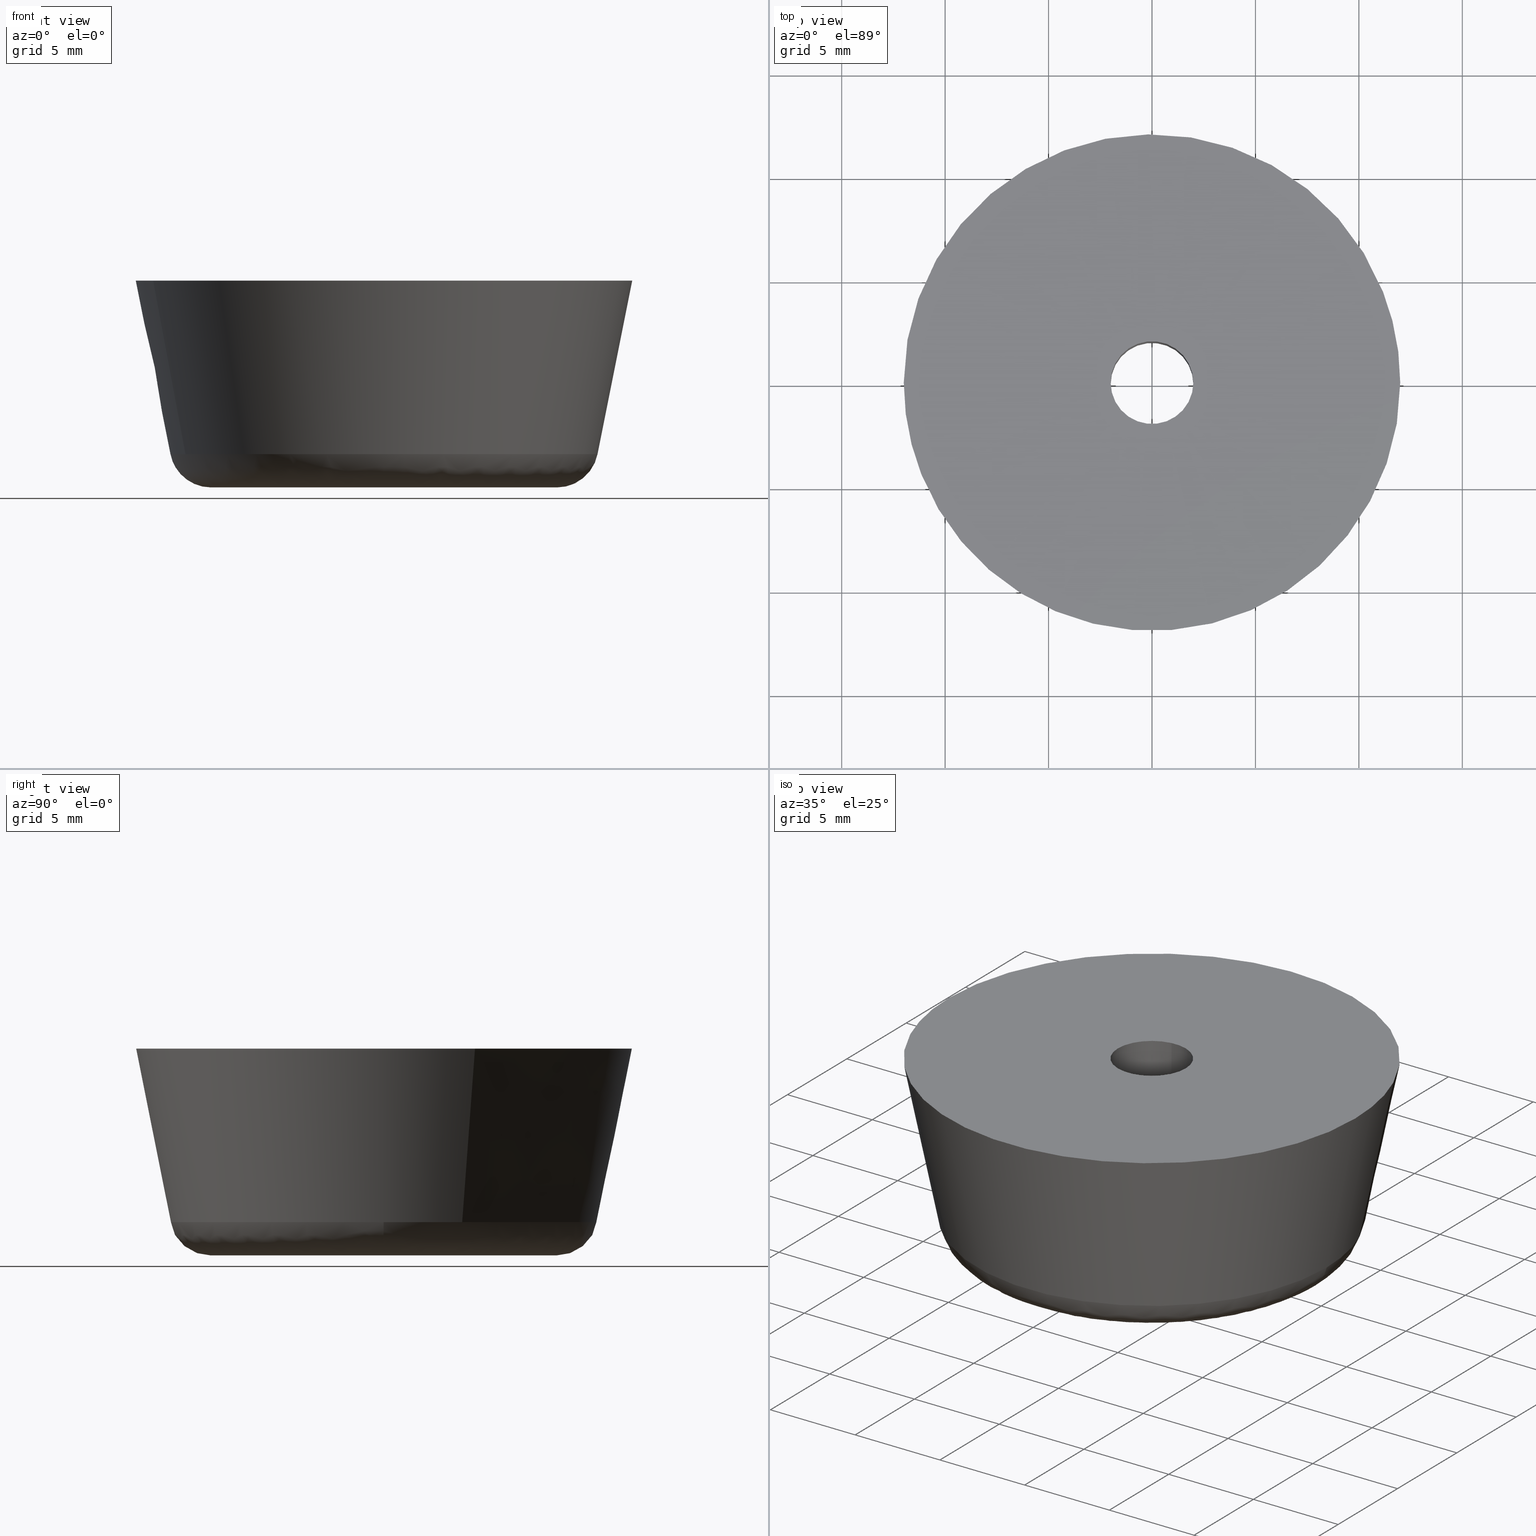
[diagram: canonical four-view strip — front | top / right | iso, engineering-drawing reading convention]
A machine part, canonical four-view strip (front | top / right | iso — engineering-drawing reading convention). The complete STEP part file that produces these views, byte-faithful:
ISO-10303-21;
HEADER;

FILE_DESCRIPTION( (''), '2;1');
FILE_NAME ('PC50.360.TM_TK_24_4764.stp','2019-12-19T16:31:35',(''),(''),'spGate 15.6.1','','');

FILE_SCHEMA (('AUTOMOTIVE_DESIGN'));
ENDSEC;

DATA;
#10=(GEOMETRIC_REPRESENTATION_CONTEXT(3) GLOBAL_UNCERTAINTY_ASSIGNED_CONTEXT((#12)) GLOBAL_UNIT_ASSIGNED_CONTEXT((#13,#14,#15)) REPRESENTATION_CONTEXT('ID1','3D'));
#12=UNCERTAINTY_MEASURE_WITH_UNIT(LENGTH_MEASURE(0.01),#16,'DISTANCE_ACCURACY_VALUE','Maximum model space distance between geometric entities at asserted connectivities');
#13=(NAMED_UNIT(*) SI_UNIT($,.STERADIAN.) SOLID_ANGLE_UNIT());
#14=(CONVERSION_BASED_UNIT('DEGREE',#35) NAMED_UNIT(#36) PLANE_ANGLE_UNIT());
#15=(LENGTH_UNIT() NAMED_UNIT(*) SI_UNIT(.MILLI.,.METRE.));
#16=(LENGTH_UNIT() NAMED_UNIT(*) SI_UNIT(.MILLI.,.METRE.));
#17=AXIS2_PLACEMENT_3D('',#38,#39,#40);
#18=AXIS2_PLACEMENT_3D('',#41,#42,#43);
#19=PRODUCT_DEFINITION('','',#48,#49);
#20=AXIS2_PLACEMENT_3D('',#50,#51,#52);
#21=AXIS2_PLACEMENT_3D('',#53,#54,#55);
#22=SHAPE_REPRESENTATION('Assembly',(#18,#20,#21),#10);
#23=AXIS2_PLACEMENT_3D('',#58,#59,#60);
#24=PRODUCT_DEFINITION('','',#65,#66);
#25=SHAPE_REPRESENTATION('washer',(#23),#10);
#26=ITEM_DEFINED_TRANSFORMATION('','',#20,#23);
#27=(REPRESENTATION_RELATIONSHIP('','',#22,#25) REPRESENTATION_RELATIONSHIP_WITH_TRANSFORMATION(#26) SHAPE_REPRESENTATION_RELATIONSHIP());
#29=AXIS2_PLACEMENT_3D('',#73,#74,#75);
#30=PRODUCT_DEFINITION('','',#80,#81);
#31=SHAPE_REPRESENTATION('rubber foot',(#29),#10);
#32=ITEM_DEFINED_TRANSFORMATION('','',#21,#29);
#33=(REPRESENTATION_RELATIONSHIP('','',#22,#31) REPRESENTATION_RELATIONSHIP_WITH_TRANSFORMATION(#32) SHAPE_REPRESENTATION_RELATIONSHIP());
#35=PLANE_ANGLE_MEASURE_WITH_UNIT(PLANE_ANGLE_MEASURE(0.01745329252),#37);
#36=DIMENSIONAL_EXPONENTS(0.0,0.0,0.0,0.0,0.0,0.0,0.0);
#37=(NAMED_UNIT(*) PLANE_ANGLE_UNIT() SI_UNIT($,.RADIAN.));
#38=CARTESIAN_POINT('',(0.00000000000E+000,0.00000000000E+000,0.00000000000E+000));
#39=DIRECTION('',(0.00000000000E+000,0.00000000000E+000,1.00000000000E+000));
#40=DIRECTION('',(1.00000000000E+000,0.00000000000E+000,0.00000000000E+000));
#41=CARTESIAN_POINT('',(0.00000000000E+000,0.00000000000E+000,0.00000000000E+000));
#42=DIRECTION('',(0.00000000000E+000,0.00000000000E+000,1.00000000000E+000));
#43=DIRECTION('',(1.00000000000E+000,0.00000000000E+000,0.00000000000E+000));
#44=APPLICATION_CONTEXT('configuration controlled 3d designs of mechanical parts and assemblies');
#45=APPLICATION_PROTOCOL_DEFINITION('International Standard','automotive_design',1999,#44);
#46=PRODUCT_CONTEXT('',#44,'');
#47=PRODUCT('Assembly','Assembly','',(#46));
#48=PRODUCT_DEFINITION_FORMATION_WITH_SPECIFIED_SOURCE('','',#47,.NOT_KNOWN.);
#49=PRODUCT_DEFINITION_CONTEXT('design',#44,'');
#50=CARTESIAN_POINT('',(0.00000000000E+000,0.00000000000E+000,0.00000000000E+000));
#51=DIRECTION('',(0.00000000000E+000,0.00000000000E+000,1.00000000000E+000));
#52=DIRECTION('',(1.00000000000E+000,0.00000000000E+000,0.00000000000E+000));
#53=CARTESIAN_POINT('',(0.00000000000E+000,0.00000000000E+000,0.00000000000E+000));
#54=DIRECTION('',(0.00000000000E+000,0.00000000000E+000,1.00000000000E+000));
#55=DIRECTION('',(1.00000000000E+000,0.00000000000E+000,0.00000000000E+000));
#56=PRODUCT_DEFINITION_SHAPE('','',#19);
#57=SHAPE_DEFINITION_REPRESENTATION(#56,#22);
#58=CARTESIAN_POINT('',(0.00000000000E+000,0.00000000000E+000,0.00000000000E+000));
#59=DIRECTION('',(0.00000000000E+000,0.00000000000E+000,1.00000000000E+000));
#60=DIRECTION('',(1.00000000000E+000,0.00000000000E+000,0.00000000000E+000));
#61=APPLICATION_CONTEXT('configuration controlled 3d designs of mechanical parts and assemblies');
#62=APPLICATION_PROTOCOL_DEFINITION('International Standard','automotive_design',1999,#61);
#63=PRODUCT_CONTEXT('',#61,'');
#64=PRODUCT('washer','washer','',(#63));
#65=PRODUCT_DEFINITION_FORMATION_WITH_SPECIFIED_SOURCE('','',#64,.NOT_KNOWN.);
#66=PRODUCT_DEFINITION_CONTEXT('design',#61,'');
#67=PRODUCT_DEFINITION_SHAPE('','',#24);
#68=SHAPE_DEFINITION_REPRESENTATION(#67,#25);
#69=NEXT_ASSEMBLY_USAGE_OCCURRENCE('','','',#19,#24,'');
#70=PRODUCT_DEFINITION_SHAPE('','',#69);
#71=CONTEXT_DEPENDENT_SHAPE_REPRESENTATION(#27,#70);
#73=CARTESIAN_POINT('',(0.00000000000E+000,0.00000000000E+000,0.00000000000E+000));
#74=DIRECTION('',(0.00000000000E+000,0.00000000000E+000,1.00000000000E+000));
#75=DIRECTION('',(1.00000000000E+000,0.00000000000E+000,0.00000000000E+000));
#76=APPLICATION_CONTEXT('configuration controlled 3d designs of mechanical parts and assemblies');
#77=APPLICATION_PROTOCOL_DEFINITION('International Standard','automotive_design',1999,#76);
#78=PRODUCT_CONTEXT('',#76,'');
#79=PRODUCT('rubber foot','rubber foot','',(#78));
#80=PRODUCT_DEFINITION_FORMATION_WITH_SPECIFIED_SOURCE('','',#79,.NOT_KNOWN.);
#81=PRODUCT_DEFINITION_CONTEXT('design',#76,'');
#82=PRODUCT_DEFINITION_SHAPE('','',#30);
#83=SHAPE_DEFINITION_REPRESENTATION(#82,#31);
#84=NEXT_ASSEMBLY_USAGE_OCCURRENCE('','','',#19,#30,'');
#85=PRODUCT_DEFINITION_SHAPE('','',#84);
#86=CONTEXT_DEPENDENT_SHAPE_REPRESENTATION(#33,#85);
#88=SHAPE_REPRESENTATION_RELATIONSHIP('','',#25,#91);
#89=SHAPE_REPRESENTATION_RELATIONSHIP('','',#31,#93);
#90=MANIFOLD_SOLID_BREP('washer',#94);
#91=ADVANCED_BREP_SHAPE_REPRESENTATION('washer',(#90),#10);
#92=MANIFOLD_SOLID_BREP('rubber foot',#103);
#93=ADVANCED_BREP_SHAPE_REPRESENTATION('rubber foot',(#92),#10);
#94=CLOSED_SHELL('',(#112,#113,#114,#115,#116,#117));
#95=COLOUR_RGB('',0.00000000000E+000,0.00000000000E+000,0.00000000000E+000);
#96=FILL_AREA_STYLE_COLOUR('',#95);
#97=FILL_AREA_STYLE('',(#96));
#98=SURFACE_STYLE_FILL_AREA(#97);
#99=SURFACE_SIDE_STYLE('',(#98));
#100=SURFACE_STYLE_USAGE(.BOTH.,#99);
#101=PRESENTATION_STYLE_ASSIGNMENT((#100));
#102=STYLED_ITEM('',(#101),#90);
#103=CLOSED_SHELL('',(#118,#119,#120,#121,#122,#123,#124,#125,#126,#127,#128,#129,#130,#131));
#104=COLOUR_RGB('',0.00000000000E+000,0.00000000000E+000,0.00000000000E+000);
#105=FILL_AREA_STYLE_COLOUR('',#104);
#106=FILL_AREA_STYLE('',(#105));
#107=SURFACE_STYLE_FILL_AREA(#106);
#108=SURFACE_SIDE_STYLE('',(#107));
#109=SURFACE_STYLE_USAGE(.BOTH.,#108);
#110=PRESENTATION_STYLE_ASSIGNMENT((#109));
#111=STYLED_ITEM('',(#110),#92);
#112=ADVANCED_FACE('',(#133,#134),#132,.F.);
#113=ADVANCED_FACE('',(#144,#145),#143,.F.);
#114=ADVANCED_FACE('',(#155),#154,.F.);
#115=ADVANCED_FACE('',(#165),#164,.F.);
#116=ADVANCED_FACE('',(#175),#174,.T.);
#117=ADVANCED_FACE('',(#185),#184,.T.);
#118=ADVANCED_FACE('',(#195,#196),#194,.F.);
#119=ADVANCED_FACE('',(#206,#207),#205,.F.);
#120=ADVANCED_FACE('',(#217,#218),#216,.F.);
#121=ADVANCED_FACE('',(#228,#229),#227,.F.);
#122=ADVANCED_FACE('',(#239),#238,.F.);
#123=ADVANCED_FACE('',(#249),#248,.F.);
#124=ADVANCED_FACE('',(#259),#258,.T.);
#125=ADVANCED_FACE('',(#269),#268,.T.);
#126=ADVANCED_FACE('',(#279),#278,.T.);
#127=ADVANCED_FACE('',(#289),#288,.T.);
#128=ADVANCED_FACE('',(#299),#298,.F.);
#129=ADVANCED_FACE('',(#309),#308,.F.);
#130=ADVANCED_FACE('',(#319),#318,.F.);
#131=ADVANCED_FACE('',(#329),#328,.F.);
#132=PLANE('',#341);
#133=FACE_OUTER_BOUND('',#342,.T.);
#134=FACE_BOUND('',#343,.T.);
#135=COLOUR_RGB('',1.00000000000E+000,1.00000000000E+000,1.00000000000E+000);
#136=FILL_AREA_STYLE_COLOUR('',#135);
#137=FILL_AREA_STYLE('',(#136));
#138=SURFACE_STYLE_FILL_AREA(#137);
#139=SURFACE_SIDE_STYLE('',(#138));
#140=SURFACE_STYLE_USAGE(.BOTH.,#139);
#141=PRESENTATION_STYLE_ASSIGNMENT((#140));
#142=STYLED_ITEM('',(#141),#112);
#143=PLANE('',#347);
#144=FACE_OUTER_BOUND('',#348,.T.);
#145=FACE_BOUND('',#349,.T.);
#146=COLOUR_RGB('',1.00000000000E+000,1.00000000000E+000,1.00000000000E+000);
#147=FILL_AREA_STYLE_COLOUR('',#146);
#148=FILL_AREA_STYLE('',(#147));
#149=SURFACE_STYLE_FILL_AREA(#148);
#150=SURFACE_SIDE_STYLE('',(#149));
#151=SURFACE_STYLE_USAGE(.BOTH.,#150);
#152=PRESENTATION_STYLE_ASSIGNMENT((#151));
#153=STYLED_ITEM('',(#152),#113);
#154=CYLINDRICAL_SURFACE('',#353,2.00000000000E+000);
#155=FACE_OUTER_BOUND('',#354,.T.);
#156=COLOUR_RGB('',1.00000000000E+000,1.00000000000E+000,1.00000000000E+000);
#157=FILL_AREA_STYLE_COLOUR('',#156);
#158=FILL_AREA_STYLE('',(#157));
#159=SURFACE_STYLE_FILL_AREA(#158);
#160=SURFACE_SIDE_STYLE('',(#159));
#161=SURFACE_STYLE_USAGE(.BOTH.,#160);
#162=PRESENTATION_STYLE_ASSIGNMENT((#161));
#163=STYLED_ITEM('',(#162),#114);
#164=CYLINDRICAL_SURFACE('',#358,2.00000000000E+000);
#165=FACE_OUTER_BOUND('',#359,.T.);
#166=COLOUR_RGB('',1.00000000000E+000,1.00000000000E+000,1.00000000000E+000);
#167=FILL_AREA_STYLE_COLOUR('',#166);
#168=FILL_AREA_STYLE('',(#167));
#169=SURFACE_STYLE_FILL_AREA(#168);
#170=SURFACE_SIDE_STYLE('',(#169));
#171=SURFACE_STYLE_USAGE(.BOTH.,#170);
#172=PRESENTATION_STYLE_ASSIGNMENT((#171));
#173=STYLED_ITEM('',(#172),#115);
#174=CYLINDRICAL_SURFACE('',#363,5.00000000000E+000);
#175=FACE_OUTER_BOUND('',#364,.T.);
#176=COLOUR_RGB('',1.00000000000E+000,1.00000000000E+000,1.00000000000E+000);
#177=FILL_AREA_STYLE_COLOUR('',#176);
#178=FILL_AREA_STYLE('',(#177));
#179=SURFACE_STYLE_FILL_AREA(#178);
#180=SURFACE_SIDE_STYLE('',(#179));
#181=SURFACE_STYLE_USAGE(.BOTH.,#180);
#182=PRESENTATION_STYLE_ASSIGNMENT((#181));
#183=STYLED_ITEM('',(#182),#116);
#184=CYLINDRICAL_SURFACE('',#368,5.00000000000E+000);
#185=FACE_OUTER_BOUND('',#369,.T.);
#186=COLOUR_RGB('',1.00000000000E+000,1.00000000000E+000,1.00000000000E+000);
#187=FILL_AREA_STYLE_COLOUR('',#186);
#188=FILL_AREA_STYLE('',(#187));
#189=SURFACE_STYLE_FILL_AREA(#188);
#190=SURFACE_SIDE_STYLE('',(#189));
#191=SURFACE_STYLE_USAGE(.BOTH.,#190);
#192=PRESENTATION_STYLE_ASSIGNMENT((#191));
#193=STYLED_ITEM('',(#192),#117);
#194=PLANE('',#373);
#195=FACE_OUTER_BOUND('',#374,.T.);
#196=FACE_BOUND('',#375,.T.);
#197=COLOUR_RGB('',1.00000000000E+000,1.00000000000E+000,1.00000000000E+000);
#198=FILL_AREA_STYLE_COLOUR('',#197);
#199=FILL_AREA_STYLE('',(#198));
#200=SURFACE_STYLE_FILL_AREA(#199);
#201=SURFACE_SIDE_STYLE('',(#200));
#202=SURFACE_STYLE_USAGE(.BOTH.,#201);
#203=PRESENTATION_STYLE_ASSIGNMENT((#202));
#204=STYLED_ITEM('',(#203),#118);
#205=PLANE('',#379);
#206=FACE_OUTER_BOUND('',#380,.T.);
#207=FACE_BOUND('',#381,.T.);
#208=COLOUR_RGB('',1.00000000000E+000,1.00000000000E+000,1.00000000000E+000);
#209=FILL_AREA_STYLE_COLOUR('',#208);
#210=FILL_AREA_STYLE('',(#209));
#211=SURFACE_STYLE_FILL_AREA(#210);
#212=SURFACE_SIDE_STYLE('',(#211));
#213=SURFACE_STYLE_USAGE(.BOTH.,#212);
#214=PRESENTATION_STYLE_ASSIGNMENT((#213));
#215=STYLED_ITEM('',(#214),#119);
#216=PLANE('',#385);
#217=FACE_OUTER_BOUND('',#386,.T.);
#218=FACE_BOUND('',#387,.T.);
#219=COLOUR_RGB('',1.00000000000E+000,1.00000000000E+000,1.00000000000E+000);
#220=FILL_AREA_STYLE_COLOUR('',#219);
#221=FILL_AREA_STYLE('',(#220));
#222=SURFACE_STYLE_FILL_AREA(#221);
#223=SURFACE_SIDE_STYLE('',(#222));
#224=SURFACE_STYLE_USAGE(.BOTH.,#223);
#225=PRESENTATION_STYLE_ASSIGNMENT((#224));
#226=STYLED_ITEM('',(#225),#120);
#227=PLANE('',#391);
#228=FACE_OUTER_BOUND('',#392,.T.);
#229=FACE_BOUND('',#393,.T.);
#230=COLOUR_RGB('',1.00000000000E+000,1.00000000000E+000,1.00000000000E+000);
#231=FILL_AREA_STYLE_COLOUR('',#230);
#232=FILL_AREA_STYLE('',(#231));
#233=SURFACE_STYLE_FILL_AREA(#232);
#234=SURFACE_SIDE_STYLE('',(#233));
#235=SURFACE_STYLE_USAGE(.BOTH.,#234);
#236=PRESENTATION_STYLE_ASSIGNMENT((#235));
#237=STYLED_ITEM('',(#236),#121);
#238=CYLINDRICAL_SURFACE('',#397,4.50000000000E+000);
#239=FACE_OUTER_BOUND('',#398,.T.);
#240=COLOUR_RGB('',1.00000000000E+000,1.00000000000E+000,1.00000000000E+000);
#241=FILL_AREA_STYLE_COLOUR('',#240);
#242=FILL_AREA_STYLE('',(#241));
#243=SURFACE_STYLE_FILL_AREA(#242);
#244=SURFACE_SIDE_STYLE('',(#243));
#245=SURFACE_STYLE_USAGE(.BOTH.,#244);
#246=PRESENTATION_STYLE_ASSIGNMENT((#245));
#247=STYLED_ITEM('',(#246),#122);
#248=CYLINDRICAL_SURFACE('',#402,4.50000000000E+000);
#249=FACE_OUTER_BOUND('',#403,.T.);
#250=COLOUR_RGB('',1.00000000000E+000,1.00000000000E+000,1.00000000000E+000);
#251=FILL_AREA_STYLE_COLOUR('',#250);
#252=FILL_AREA_STYLE('',(#251));
#253=SURFACE_STYLE_FILL_AREA(#252);
#254=SURFACE_SIDE_STYLE('',(#253));
#255=SURFACE_STYLE_USAGE(.BOTH.,#254);
#256=PRESENTATION_STYLE_ASSIGNMENT((#255));
#257=STYLED_ITEM('',(#256),#123);
#258=( BOUNDED_SURFACE() B_SPLINE_SURFACE( 2,2,((#404,#405,#406,#407,#408),(#409,#410,#411,#412,#413),(#414,#415,#416,#417,#418),(#419,#420,#421,#422,#423),(#424,#425,#426,#427,#428)), .UNSPECIFIED.,.F.,.F.,.F.) B_SPLINE_SURFACE_WITH_KNOTS((3,2,3),(3,2,3),(0.00000000000E+000,5.00000000000E-001,1.00000000000E+000),(0.00000000000E+000,5.00000000000E-001,1.00000000000E+000), .UNSPECIFIED. ) GEOMETRIC_REPRESENTATION_ITEM() RATIONAL_B_SPLINE_SURFACE(((1.00000000000E+000,7.73342134340E-001,1.00000000000E+000,7.73342134340E-001,1.00000000000E+000),(7.07106781187E-001,5.46835467369E-001,7.07106781187E-001,5.46835467369E-001,7.07106781187E-001),(1.00000000000E+000,7.73342134340E-001,1.00000000000E+000,7.73342134340E-001,1.00000000000E+000),(7.07106781187E-001,5.46835467369E-001,7.07106781187E-001,5.46835467369E-001,7.07106781187E-001),(1.00000000000E+000,7.73342134340E-001,1.00000000000E+000,7.73342134340E-001,1.00000000000E+000))) REPRESENTATION_ITEM('') SURFACE() );
#259=FACE_OUTER_BOUND('',#429,.T.);
#260=COLOUR_RGB('',1.00000000000E+000,1.00000000000E+000,1.00000000000E+000);
#261=FILL_AREA_STYLE_COLOUR('',#260);
#262=FILL_AREA_STYLE('',(#261));
#263=SURFACE_STYLE_FILL_AREA(#262);
#264=SURFACE_SIDE_STYLE('',(#263));
#265=SURFACE_STYLE_USAGE(.BOTH.,#264);
#266=PRESENTATION_STYLE_ASSIGNMENT((#265));
#267=STYLED_ITEM('',(#266),#124);
#268=( BOUNDED_SURFACE() B_SPLINE_SURFACE( 2,2,((#430,#431,#432,#433,#434),(#435,#436,#437,#438,#439),(#440,#441,#442,#443,#444),(#445,#446,#447,#448,#449),(#450,#451,#452,#453,#454)), .UNSPECIFIED.,.F.,.F.,.F.) B_SPLINE_SURFACE_WITH_KNOTS((3,2,3),(3,2,3),(0.00000000000E+000,5.00000000000E-001,1.00000000000E+000),(0.00000000000E+000,5.00000000000E-001,1.00000000000E+000), .UNSPECIFIED. ) GEOMETRIC_REPRESENTATION_ITEM() RATIONAL_B_SPLINE_SURFACE(((1.00000000000E+000,7.73342134340E-001,1.00000000000E+000,7.73342134340E-001,1.00000000000E+000),(7.07106781187E-001,5.46835467369E-001,7.07106781187E-001,5.46835467369E-001,7.07106781187E-001),(1.00000000000E+000,7.73342134340E-001,1.00000000000E+000,7.73342134340E-001,1.00000000000E+000),(7.07106781187E-001,5.46835467369E-001,7.07106781187E-001,5.46835467369E-001,7.07106781187E-001),(1.00000000000E+000,7.73342134340E-001,1.00000000000E+000,7.73342134340E-001,1.00000000000E+000))) REPRESENTATION_ITEM('') SURFACE() );
#269=FACE_OUTER_BOUND('',#455,.T.);
#270=COLOUR_RGB('',1.00000000000E+000,1.00000000000E+000,1.00000000000E+000);
#271=FILL_AREA_STYLE_COLOUR('',#270);
#272=FILL_AREA_STYLE('',(#271));
#273=SURFACE_STYLE_FILL_AREA(#272);
#274=SURFACE_SIDE_STYLE('',(#273));
#275=SURFACE_STYLE_USAGE(.BOTH.,#274);
#276=PRESENTATION_STYLE_ASSIGNMENT((#275));
#277=STYLED_ITEM('',(#276),#125);
#278=( BOUNDED_SURFACE() B_SPLINE_SURFACE( 2,1,((#456,#457),(#458,#459),(#460,#461),(#462,#463),(#464,#465)), .UNSPECIFIED.,.F.,.F.,.F.) B_SPLINE_SURFACE_WITH_KNOTS((3,2,3),(2,2),(0.00000000000E+000,5.00000000000E-001,1.00000000000E+000),(0.00000000000E+000,1.00000000000E+000), .UNSPECIFIED. ) GEOMETRIC_REPRESENTATION_ITEM() RATIONAL_B_SPLINE_SURFACE(((1.00000000000E+000,1.00000000000E+000),(7.07106781187E-001,7.07106781187E-001),(1.00000000000E+000,1.00000000000E+000),(7.07106781187E-001,7.07106781187E-001),(1.00000000000E+000,1.00000000000E+000))) REPRESENTATION_ITEM('') SURFACE() );
#279=FACE_OUTER_BOUND('',#466,.T.);
#280=COLOUR_RGB('',1.00000000000E+000,1.00000000000E+000,1.00000000000E+000);
#281=FILL_AREA_STYLE_COLOUR('',#280);
#282=FILL_AREA_STYLE('',(#281));
#283=SURFACE_STYLE_FILL_AREA(#282);
#284=SURFACE_SIDE_STYLE('',(#283));
#285=SURFACE_STYLE_USAGE(.BOTH.,#284);
#286=PRESENTATION_STYLE_ASSIGNMENT((#285));
#287=STYLED_ITEM('',(#286),#126);
#288=( BOUNDED_SURFACE() B_SPLINE_SURFACE( 2,1,((#467,#468),(#469,#470),(#471,#472),(#473,#474),(#475,#476)), .UNSPECIFIED.,.F.,.F.,.F.) B_SPLINE_SURFACE_WITH_KNOTS((3,2,3),(2,2),(0.00000000000E+000,5.00000000000E-001,1.00000000000E+000),(0.00000000000E+000,1.00000000000E+000), .UNSPECIFIED. ) GEOMETRIC_REPRESENTATION_ITEM() RATIONAL_B_SPLINE_SURFACE(((1.00000000000E+000,1.00000000000E+000),(7.07106781187E-001,7.07106781187E-001),(1.00000000000E+000,1.00000000000E+000),(7.07106781187E-001,7.07106781187E-001),(1.00000000000E+000,1.00000000000E+000))) REPRESENTATION_ITEM('') SURFACE() );
#289=FACE_OUTER_BOUND('',#477,.T.);
#290=COLOUR_RGB('',1.00000000000E+000,1.00000000000E+000,1.00000000000E+000);
#291=FILL_AREA_STYLE_COLOUR('',#290);
#292=FILL_AREA_STYLE('',(#291));
#293=SURFACE_STYLE_FILL_AREA(#292);
#294=SURFACE_SIDE_STYLE('',(#293));
#295=SURFACE_STYLE_USAGE(.BOTH.,#294);
#296=PRESENTATION_STYLE_ASSIGNMENT((#295));
#297=STYLED_ITEM('',(#296),#127);
#298=CYLINDRICAL_SURFACE('',#481,2.00000000000E+000);
#299=FACE_OUTER_BOUND('',#482,.T.);
#300=COLOUR_RGB('',1.00000000000E+000,1.00000000000E+000,1.00000000000E+000);
#301=FILL_AREA_STYLE_COLOUR('',#300);
#302=FILL_AREA_STYLE('',(#301));
#303=SURFACE_STYLE_FILL_AREA(#302);
#304=SURFACE_SIDE_STYLE('',(#303));
#305=SURFACE_STYLE_USAGE(.BOTH.,#304);
#306=PRESENTATION_STYLE_ASSIGNMENT((#305));
#307=STYLED_ITEM('',(#306),#128);
#308=CYLINDRICAL_SURFACE('',#486,2.00000000000E+000);
#309=FACE_OUTER_BOUND('',#487,.T.);
#310=COLOUR_RGB('',1.00000000000E+000,1.00000000000E+000,1.00000000000E+000);
#311=FILL_AREA_STYLE_COLOUR('',#310);
#312=FILL_AREA_STYLE('',(#311));
#313=SURFACE_STYLE_FILL_AREA(#312);
#314=SURFACE_SIDE_STYLE('',(#313));
#315=SURFACE_STYLE_USAGE(.BOTH.,#314);
#316=PRESENTATION_STYLE_ASSIGNMENT((#315));
#317=STYLED_ITEM('',(#316),#129);
#318=CYLINDRICAL_SURFACE('',#491,5.00000000000E+000);
#319=FACE_OUTER_BOUND('',#492,.T.);
#320=COLOUR_RGB('',1.00000000000E+000,1.00000000000E+000,1.00000000000E+000);
#321=FILL_AREA_STYLE_COLOUR('',#320);
#322=FILL_AREA_STYLE('',(#321));
#323=SURFACE_STYLE_FILL_AREA(#322);
#324=SURFACE_SIDE_STYLE('',(#323));
#325=SURFACE_STYLE_USAGE(.BOTH.,#324);
#326=PRESENTATION_STYLE_ASSIGNMENT((#325));
#327=STYLED_ITEM('',(#326),#130);
#328=CYLINDRICAL_SURFACE('',#496,5.00000000000E+000);
#329=FACE_OUTER_BOUND('',#497,.T.);
#330=COLOUR_RGB('',1.00000000000E+000,1.00000000000E+000,1.00000000000E+000);
#331=FILL_AREA_STYLE_COLOUR('',#330);
#332=FILL_AREA_STYLE('',(#331));
#333=SURFACE_STYLE_FILL_AREA(#332);
#334=SURFACE_SIDE_STYLE('',(#333));
#335=SURFACE_STYLE_USAGE(.BOTH.,#334);
#336=PRESENTATION_STYLE_ASSIGNMENT((#335));
#337=STYLED_ITEM('',(#336),#131);
#338=CARTESIAN_POINT('',(-9.72948658446E+000,-7.57898896068E+000,5.00000000000E+000));
#339=DIRECTION('',(0.00000000000E+000,0.00000000000E+000,1.00000000000E+000));
#340=DIRECTION('',(1.00000000000E+000,0.00000000000E+000,0.00000000000E+000));
#341=AXIS2_PLACEMENT_3D('',#338,#339,#340);
#342=EDGE_LOOP('',(#498,#499));
#343=EDGE_LOOP('',(#500,#501));
#344=CARTESIAN_POINT('',(9.72841624997E+000,-1.15217440547E+001,5.80000000000E+000));
#345=DIRECTION('',(0.00000000000E+000,0.00000000000E+000,-1.00000000000E+000));
#346=DIRECTION('',(-1.00000000000E+000,0.00000000000E+000,0.00000000000E+000));
#347=AXIS2_PLACEMENT_3D('',#344,#345,#346);
#348=EDGE_LOOP('',(#502,#503));
#349=EDGE_LOOP('',(#504,#505));
#350=CARTESIAN_POINT('',(1.81513324819E-018,1.14488896871E-017,5.40000009537E+000));
#351=DIRECTION('',(-3.50027562528E-014,-4.16060816688E-015,-1.00000000000E+000));
#352=DIRECTION('',(-1.18034234657E-001,9.93009526364E-001,5.06922017695E-027));
#353=AXIS2_PLACEMENT_3D('',#350,#351,#352);
#354=EDGE_LOOP('',(#506,#507,#508,#509));
#355=CARTESIAN_POINT('',(1.81513324819E-018,1.14488896871E-017,5.40000009537E+000));
#356=DIRECTION('',(-3.50027562528E-014,-4.16060816688E-015,-1.00000000000E+000));
#357=DIRECTION('',(-1.18034234657E-001,9.93009526364E-001,5.06922017695E-027));
#358=AXIS2_PLACEMENT_3D('',#355,#356,#357);
#359=EDGE_LOOP('',(#510,#511,#512,#513));
#360=CARTESIAN_POINT('',(3.12604167755E-017,-3.05284345532E-018,5.40000009537E+000));
#361=DIRECTION('',(-1.40140186473E-014,-1.66577854652E-015,-1.00000000000E+000));
#362=DIRECTION('',(-1.18034234657E-001,9.93009526364E-001,-4.15591646393E-027));
#363=AXIS2_PLACEMENT_3D('',#360,#361,#362);
#364=EDGE_LOOP('',(#514,#515,#516,#517));
#365=CARTESIAN_POINT('',(3.12604167755E-017,-3.05284345532E-018,5.40000009537E+000));
#366=DIRECTION('',(-1.40140186473E-014,-1.66577854652E-015,-1.00000000000E+000));
#367=DIRECTION('',(-1.18034234657E-001,9.93009526364E-001,-4.15591646393E-027));
#368=AXIS2_PLACEMENT_3D('',#365,#366,#367);
#369=EDGE_LOOP('',(#518,#519,#520,#521));
#370=CARTESIAN_POINT('',(-1.08685101033E+001,-1.73767492630E+001,4.21884700000E-015));
#371=DIRECTION('',(0.00000000000E+000,-0.00000000000E+000,1.00000000000E+000));
#372=DIRECTION('',(1.00000000000E+000,0.00000000000E+000,0.00000000000E+000));
#373=AXIS2_PLACEMENT_3D('',#370,#371,#372);
#374=EDGE_LOOP('',(#522,#523));
#375=EDGE_LOOP('',(#524,#525));
#376=CARTESIAN_POINT('',(1.44000000000E+001,-1.51244447844E+001,1.00000000000E+001));
#377=DIRECTION('',(0.00000000000E+000,0.00000000000E+000,-1.00000000000E+000));
#378=DIRECTION('',(-1.00000000000E+000,0.00000000000E+000,0.00000000000E+000));
#379=AXIS2_PLACEMENT_3D('',#376,#377,#378);
#380=EDGE_LOOP('',(#526,#527,#528,#529,#530));
#381=EDGE_LOOP('',(#531,#532));
#382=CARTESIAN_POINT('',(9.72841625070E+000,-1.15217440547E+001,5.00000000000E+000));
#383=DIRECTION('',(0.00000000000E+000,0.00000000000E+000,-1.00000000000E+000));
#384=DIRECTION('',(-1.00000000000E+000,0.00000000000E+000,0.00000000000E+000));
#385=AXIS2_PLACEMENT_3D('',#382,#383,#384);
#386=EDGE_LOOP('',(#533,#534));
#387=EDGE_LOOP('',(#535,#536));
#388=CARTESIAN_POINT('',(-9.72948658446E+000,-7.57898896068E+000,5.80000000000E+000));
#389=DIRECTION('',(0.00000000000E+000,0.00000000000E+000,1.00000000000E+000));
#390=DIRECTION('',(1.00000000000E+000,0.00000000000E+000,0.00000000000E+000));
#391=AXIS2_PLACEMENT_3D('',#388,#389,#390);
#392=EDGE_LOOP('',(#537,#538));
#393=EDGE_LOOP('',(#539,#540));
#394=CARTESIAN_POINT('',(-1.47203645283E-016,2.33186139093E-016,2.50000000000E+000));
#395=DIRECTION('',(5.39249104633E-015,6.40979302462E-016,-1.00000000000E+000));
#396=DIRECTION('',(-1.18034234657E-001,9.93009526364E-001,-1.36887088578E-027));
#397=AXIS2_PLACEMENT_3D('',#394,#395,#396);
#398=EDGE_LOOP('',(#541,#542,#543,#544));
#399=CARTESIAN_POINT('',(-1.47203645283E-016,2.33186139093E-016,2.50000000000E+000));
#400=DIRECTION('',(5.39249104633E-015,6.40979302462E-016,-1.00000000000E+000));
#401=DIRECTION('',(-1.18034234657E-001,9.93009526364E-001,-1.36887088578E-027));
#402=AXIS2_PLACEMENT_3D('',#399,#400,#401);
#403=EDGE_LOOP('',(#545,#546,#547,#548));
#404=CARTESIAN_POINT('',(6.39923102714E+000,-1.19843337755E-014,1.60776777301E+000));
#405=CARTESIAN_POINT('',(6.72078454483E+000,-3.58160320841E-015,4.59397402656E-015));
#406=CARTESIAN_POINT('',(8.36039238717E+000,-4.93087802339E-015,4.44089209850E-015));
#407=CARTESIAN_POINT('',(1.00000002295E+001,-6.28015283836E-015,4.01972727324E-015));
#408=CARTESIAN_POINT('',(1.03215537472E+001,-1.52121124710E-014,1.60776777301E+000));
#409=CARTESIAN_POINT('',(6.39923102714E+000,6.39923102714E+000,1.60776777301E+000));
#410=CARTESIAN_POINT('',(6.72078454483E+000,6.72078454483E+000,4.07327598544E-014));
#411=CARTESIAN_POINT('',(8.36039238717E+000,8.36039238717E+000,4.96595549086E-014));
#412=CARTESIAN_POINT('',(1.00000002295E+001,1.00000002295E+001,5.80248791283E-014));
#413=CARTESIAN_POINT('',(1.03215537472E+001,1.03215537472E+001,1.60776777301E+000));
#414=CARTESIAN_POINT('',(5.65792915640E-015,6.39923102714E+000,1.60776777301E+000));
#415=CARTESIAN_POINT('',(5.94223316345E-015,6.72078454483E+000,4.07715194857E-014));
#416=CARTESIAN_POINT('',(7.39190500323E-015,8.36039238717E+000,4.95159468983E-014));
#417=CARTESIAN_POINT('',(8.84157684300E-015,1.00000002295E+001,5.79989220853E-014));
#418=CARTESIAN_POINT('',(9.12588085005E-015,1.03215537472E+001,1.60776777301E+000));
#419=CARTESIAN_POINT('',(-6.39923102714E+000,6.39923102714E+000,1.60776777301E+000));
#420=CARTESIAN_POINT('',(-6.72078454483E+000,6.72078454483E+000,4.07327598544E-014));
#421=CARTESIAN_POINT('',(-8.36039238717E+000,8.36039238717E+000,4.96595549086E-014));
#422=CARTESIAN_POINT('',(-1.00000002295E+001,1.00000002295E+001,5.80248791283E-014));
#423=CARTESIAN_POINT('',(-1.03215537472E+001,1.03215537472E+001,1.60776777301E+000));
#424=CARTESIAN_POINT('',(-6.39923102714E+000,-6.68475462740E-016,1.60776777301E+000));
#425=CARTESIAN_POINT('',(-6.72078454483E+000,8.30286311849E-015,4.59397402656E-015));
#426=CARTESIAN_POINT('',(-8.36039238717E+000,9.85293198307E-015,4.44089209850E-015));
#427=CARTESIAN_POINT('',(-1.00000002295E+001,1.14030008476E-014,4.01972727324E-015));
#428=CARTESIAN_POINT('',(-1.03215537472E+001,3.03964922913E-015,1.60776777301E+000));
#429=EDGE_LOOP('',(#549,#550,#551,#552,#553));
#430=CARTESIAN_POINT('',(-6.39923102714E+000,-6.68475462740E-016,1.60776777301E+000));
#431=CARTESIAN_POINT('',(-6.72078454483E+000,8.30286311849E-015,4.59397402656E-015));
#432=CARTESIAN_POINT('',(-8.36039238717E+000,9.85293198307E-015,4.44089209850E-015));
#433=CARTESIAN_POINT('',(-1.00000002295E+001,1.14030008476E-014,4.01972727324E-015));
#434=CARTESIAN_POINT('',(-1.03215537472E+001,3.03964922913E-015,1.60776777301E+000));
#435=CARTESIAN_POINT('',(-6.39923102714E+000,-6.39923102714E+000,1.60776777301E+000));
#436=CARTESIAN_POINT('',(-6.72078454483E+000,-6.72078454483E+000,-3.15448118013E-014));
#437=CARTESIAN_POINT('',(-8.36039238717E+000,-8.36039238717E+000,-4.07777707116E-014));
#438=CARTESIAN_POINT('',(-1.00000002295E+001,-1.00000002295E+001,-4.99854245819E-014));
#439=CARTESIAN_POINT('',(-1.03215537472E+001,-1.03215537472E+001,1.60776777301E+000));
#440=CARTESIAN_POINT('',(-6.44160893584E-015,-6.39923102714E+000,1.60776777301E+000));
#441=CARTESIAN_POINT('',(-6.76529189151E-015,-6.72078454483E+000,-3.15835714326E-014));
#442=CARTESIAN_POINT('',(-8.41575778088E-015,-8.36039238717E+000,-4.06341627013E-014));
#443=CARTESIAN_POINT('',(-1.00662236703E-014,-1.00000002295E+001,-4.99594675388E-014));
#444=CARTESIAN_POINT('',(-1.03899066259E-014,-1.03215537472E+001,1.60776777301E+000));
#445=CARTESIAN_POINT('',(6.39923102714E+000,-6.39923102714E+000,1.60776777301E+000));
#446=CARTESIAN_POINT('',(6.72078454483E+000,-6.72078454483E+000,-3.15448118013E-014));
#447=CARTESIAN_POINT('',(8.36039238717E+000,-8.36039238717E+000,-4.07777707116E-014));
#448=CARTESIAN_POINT('',(1.00000002295E+001,-1.00000002295E+001,-4.99854245819E-014));
#449=CARTESIAN_POINT('',(1.03215537472E+001,-1.03215537472E+001,1.60776777301E+000));
#450=CARTESIAN_POINT('',(6.39923102714E+000,-1.35516933344E-014,1.60776777301E+000));
#451=CARTESIAN_POINT('',(6.72078454483E+000,-5.22772066453E-015,4.59397402656E-015));
#452=CARTESIAN_POINT('',(8.36039238717E+000,-6.97858357870E-015,4.44089209850E-015));
#453=CARTESIAN_POINT('',(1.00000002295E+001,-8.72944649287E-015,4.01972727324E-015));
#454=CARTESIAN_POINT('',(1.03215537472E+001,-1.77401640227E-014,1.60776777301E+000));
#455=EDGE_LOOP('',(#554,#555,#556,#557,#558));
#456=CARTESIAN_POINT('',(-9.59764558634E+000,-3.79732418365E+000,1.60776777301E+000));
#457=CARTESIAN_POINT('',(-1.11585032174E+001,-4.41488005986E+000,1.00006999949E+001));
#458=CARTESIAN_POINT('',(-5.80032140269E+000,-1.33949697700E+001,1.60776777301E+000));
#459=CARTESIAN_POINT('',(-6.74362315753E+000,-1.55733832773E+001,1.00006999949E+001));
#460=CARTESIAN_POINT('',(3.79732418365E+000,-9.59764558634E+000,1.60776777301E+000));
#461=CARTESIAN_POINT('',(4.41488005986E+000,-1.11585032174E+001,1.00006999949E+001));
#462=CARTESIAN_POINT('',(1.33949697700E+001,-5.80032140269E+000,1.60776777301E+000));
#463=CARTESIAN_POINT('',(1.55733832773E+001,-6.74362315753E+000,1.00006999949E+001));
#464=CARTESIAN_POINT('',(9.59764558634E+000,3.79732418365E+000,1.60776777301E+000));
#465=CARTESIAN_POINT('',(1.11585032174E+001,4.41488005986E+000,1.00006999949E+001));
#466=EDGE_LOOP('',(#559,#560,#561,#562,#563,#564,#565));
#467=CARTESIAN_POINT('',(9.59764558634E+000,3.79732418365E+000,1.60776777301E+000));
#468=CARTESIAN_POINT('',(1.11585032174E+001,4.41488005986E+000,1.00006999949E+001));
#469=CARTESIAN_POINT('',(5.80032140269E+000,1.33949697700E+001,1.60776777301E+000));
#470=CARTESIAN_POINT('',(6.74362315753E+000,1.55733832773E+001,1.00006999949E+001));
#471=CARTESIAN_POINT('',(-3.79732418365E+000,9.59764558634E+000,1.60776777301E+000));
#472=CARTESIAN_POINT('',(-4.41488005986E+000,1.11585032174E+001,1.00006999949E+001));
#473=CARTESIAN_POINT('',(-1.33949697700E+001,5.80032140269E+000,1.60776777301E+000));
#474=CARTESIAN_POINT('',(-1.55733832773E+001,6.74362315753E+000,1.00006999949E+001));
#475=CARTESIAN_POINT('',(-9.59764558634E+000,-3.79732418365E+000,1.60776777301E+000));
#476=CARTESIAN_POINT('',(-1.11585032174E+001,-4.41488005986E+000,1.00006999949E+001));
#477=EDGE_LOOP('',(#566,#567,#568,#569,#570,#571));
#478=CARTESIAN_POINT('',(2.94107710977E-017,1.41420366015E-017,7.90000009537E+000));
#479=DIRECTION('',(-2.76929706381E-014,-2.84451388411E-015,-1.00000000000E+000));
#480=DIRECTION('',(-1.18034234657E-001,9.93009526364E-001,4.44089209851E-016));
#481=AXIS2_PLACEMENT_3D('',#478,#479,#480);
#482=EDGE_LOOP('',(#572,#573,#574,#575));
#483=CARTESIAN_POINT('',(2.94107710977E-017,1.41420366015E-017,7.90000009537E+000));
#484=DIRECTION('',(-2.76929706381E-014,-2.84451388411E-015,-1.00000000000E+000));
#485=DIRECTION('',(-1.18034234657E-001,9.93009526364E-001,4.44089209851E-016));
#486=AXIS2_PLACEMENT_3D('',#483,#484,#485);
#487=EDGE_LOOP('',(#576,#577,#578,#579));
#488=CARTESIAN_POINT('',(3.12604167755E-017,-3.05284345532E-018,5.40000009537E+000));
#489=DIRECTION('',(-1.40140186473E-014,-1.66577854652E-015,-1.00000000000E+000));
#490=DIRECTION('',(-1.18034234657E-001,9.93009526364E-001,-4.15591646393E-027));
#491=AXIS2_PLACEMENT_3D('',#488,#489,#490);
#492=EDGE_LOOP('',(#580,#581,#582,#583));
#493=CARTESIAN_POINT('',(3.12604167755E-017,-3.05284345532E-018,5.40000009537E+000));
#494=DIRECTION('',(-1.40140186473E-014,-1.66577854652E-015,-1.00000000000E+000));
#495=DIRECTION('',(-1.18034234657E-001,9.93009526364E-001,-4.15591646393E-027));
#496=AXIS2_PLACEMENT_3D('',#493,#494,#495);
#497=EDGE_LOOP('',(#584,#585,#586,#587));
#498=ORIENTED_EDGE('',*,*,#588,.T.);
#499=ORIENTED_EDGE('',*,*,#589,.T.);
#500=ORIENTED_EDGE('',*,*,#590,.F.);
#501=ORIENTED_EDGE('',*,*,#591,.F.);
#502=ORIENTED_EDGE('',*,*,#592,.F.);
#503=ORIENTED_EDGE('',*,*,#593,.F.);
#504=ORIENTED_EDGE('',*,*,#594,.T.);
#505=ORIENTED_EDGE('',*,*,#595,.T.);
#506=ORIENTED_EDGE('',*,*,#595,.F.);
#507=ORIENTED_EDGE('',*,*,#596,.T.);
#508=ORIENTED_EDGE('',*,*,#591,.T.);
#509=ORIENTED_EDGE('',*,*,#597,.F.);
#510=ORIENTED_EDGE('',*,*,#590,.T.);
#511=ORIENTED_EDGE('',*,*,#596,.F.);
#512=ORIENTED_EDGE('',*,*,#594,.F.);
#513=ORIENTED_EDGE('',*,*,#597,.T.);
#514=ORIENTED_EDGE('',*,*,#589,.F.);
#515=ORIENTED_EDGE('',*,*,#598,.F.);
#516=ORIENTED_EDGE('',*,*,#593,.T.);
#517=ORIENTED_EDGE('',*,*,#599,.T.);
#518=ORIENTED_EDGE('',*,*,#592,.T.);
#519=ORIENTED_EDGE('',*,*,#598,.T.);
#520=ORIENTED_EDGE('',*,*,#588,.F.);
#521=ORIENTED_EDGE('',*,*,#599,.F.);
#522=ORIENTED_EDGE('',*,*,#600,.T.);
#523=ORIENTED_EDGE('',*,*,#601,.T.);
#524=ORIENTED_EDGE('',*,*,#602,.F.);
#525=ORIENTED_EDGE('',*,*,#603,.F.);
#526=ORIENTED_EDGE('',*,*,#604,.F.);
#527=ORIENTED_EDGE('',*,*,#605,.F.);
#528=ORIENTED_EDGE('',*,*,#606,.F.);
#529=ORIENTED_EDGE('',*,*,#607,.F.);
#530=ORIENTED_EDGE('',*,*,#608,.F.);
#531=ORIENTED_EDGE('',*,*,#609,.T.);
#532=ORIENTED_EDGE('',*,*,#610,.T.);
#533=ORIENTED_EDGE('',*,*,#611,.F.);
#534=ORIENTED_EDGE('',*,*,#612,.F.);
#535=ORIENTED_EDGE('',*,*,#613,.T.);
#536=ORIENTED_EDGE('',*,*,#614,.T.);
#537=ORIENTED_EDGE('',*,*,#615,.T.);
#538=ORIENTED_EDGE('',*,*,#616,.T.);
#539=ORIENTED_EDGE('',*,*,#617,.F.);
#540=ORIENTED_EDGE('',*,*,#618,.F.);
#541=ORIENTED_EDGE('',*,*,#614,.F.);
#542=ORIENTED_EDGE('',*,*,#619,.T.);
#543=ORIENTED_EDGE('',*,*,#603,.T.);
#544=ORIENTED_EDGE('',*,*,#620,.F.);
#545=ORIENTED_EDGE('',*,*,#602,.T.);
#546=ORIENTED_EDGE('',*,*,#619,.F.);
#547=ORIENTED_EDGE('',*,*,#613,.F.);
#548=ORIENTED_EDGE('',*,*,#620,.T.);
#549=ORIENTED_EDGE('',*,*,#621,.F.);
#550=ORIENTED_EDGE('',*,*,#622,.F.);
#551=ORIENTED_EDGE('',*,*,#623,.F.);
#552=ORIENTED_EDGE('',*,*,#600,.F.);
#553=ORIENTED_EDGE('',*,*,#624,.T.);
#554=ORIENTED_EDGE('',*,*,#601,.F.);
#555=ORIENTED_EDGE('',*,*,#623,.T.);
#556=ORIENTED_EDGE('',*,*,#625,.F.);
#557=ORIENTED_EDGE('',*,*,#626,.F.);
#558=ORIENTED_EDGE('',*,*,#624,.F.);
#559=ORIENTED_EDGE('',*,*,#607,.T.);
#560=ORIENTED_EDGE('',*,*,#606,.T.);
#561=ORIENTED_EDGE('',*,*,#605,.T.);
#562=ORIENTED_EDGE('',*,*,#627,.F.);
#563=ORIENTED_EDGE('',*,*,#625,.T.);
#564=ORIENTED_EDGE('',*,*,#622,.T.);
#565=ORIENTED_EDGE('',*,*,#628,.T.);
#566=ORIENTED_EDGE('',*,*,#621,.T.);
#567=ORIENTED_EDGE('',*,*,#626,.T.);
#568=ORIENTED_EDGE('',*,*,#627,.T.);
#569=ORIENTED_EDGE('',*,*,#604,.T.);
#570=ORIENTED_EDGE('',*,*,#608,.T.);
#571=ORIENTED_EDGE('',*,*,#628,.F.);
#572=ORIENTED_EDGE('',*,*,#610,.F.);
#573=ORIENTED_EDGE('',*,*,#629,.T.);
#574=ORIENTED_EDGE('',*,*,#618,.T.);
#575=ORIENTED_EDGE('',*,*,#630,.F.);
#576=ORIENTED_EDGE('',*,*,#617,.T.);
#577=ORIENTED_EDGE('',*,*,#629,.F.);
#578=ORIENTED_EDGE('',*,*,#609,.F.);
#579=ORIENTED_EDGE('',*,*,#630,.T.);
#580=ORIENTED_EDGE('',*,*,#616,.F.);
#581=ORIENTED_EDGE('',*,*,#631,.T.);
#582=ORIENTED_EDGE('',*,*,#612,.T.);
#583=ORIENTED_EDGE('',*,*,#632,.F.);
#584=ORIENTED_EDGE('',*,*,#611,.T.);
#585=ORIENTED_EDGE('',*,*,#631,.F.);
#586=ORIENTED_EDGE('',*,*,#615,.F.);
#587=ORIENTED_EDGE('',*,*,#632,.T.);
#588=EDGE_CURVE('',#633,#634,#635,.T.);
#589=EDGE_CURVE('',#634,#633,#641,.T.);
#590=EDGE_CURVE('',#647,#648,#649,.T.);
#591=EDGE_CURVE('',#648,#647,#655,.T.);
#592=EDGE_CURVE('',#661,#662,#663,.T.);
#593=EDGE_CURVE('',#662,#661,#669,.T.);
#594=EDGE_CURVE('',#675,#676,#677,.T.);
#595=EDGE_CURVE('',#676,#675,#683,.T.);
#596=EDGE_CURVE('',#676,#648,#689,.T.);
#597=EDGE_CURVE('',#675,#647,#695,.T.);
#598=EDGE_CURVE('',#662,#634,#701,.T.);
#599=EDGE_CURVE('',#661,#633,#707,.T.);
#600=EDGE_CURVE('',#713,#714,#715,.T.);
#601=EDGE_CURVE('',#714,#713,#721,.T.);
#602=EDGE_CURVE('',#727,#728,#729,.T.);
#603=EDGE_CURVE('',#728,#727,#735,.T.);
#604=EDGE_CURVE('',#741,#742,#743,.T.);
#605=EDGE_CURVE('',#749,#741,#750,.T.);
#606=EDGE_CURVE('',#756,#749,#757,.T.);
#607=EDGE_CURVE('',#763,#756,#764,.T.);
#608=EDGE_CURVE('',#742,#763,#770,.T.);
#609=EDGE_CURVE('',#776,#777,#778,.T.);
#610=EDGE_CURVE('',#777,#776,#784,.T.);
#611=EDGE_CURVE('',#790,#791,#792,.T.);
#612=EDGE_CURVE('',#791,#790,#798,.T.);
#613=EDGE_CURVE('',#804,#805,#806,.T.);
#614=EDGE_CURVE('',#805,#804,#812,.T.);
#615=EDGE_CURVE('',#818,#819,#820,.T.);
#616=EDGE_CURVE('',#819,#818,#826,.T.);
#617=EDGE_CURVE('',#832,#833,#834,.T.);
#618=EDGE_CURVE('',#833,#832,#840,.T.);
#619=EDGE_CURVE('',#805,#728,#846,.T.);
#620=EDGE_CURVE('',#804,#727,#852,.T.);
#621=EDGE_CURVE('',#858,#859,#860,.T.);
#622=EDGE_CURVE('',#866,#858,#867,.T.);
#623=EDGE_CURVE('',#714,#866,#873,.T.);
#624=EDGE_CURVE('',#713,#859,#879,.T.);
#625=EDGE_CURVE('',#885,#866,#886,.T.);
#626=EDGE_CURVE('',#859,#885,#892,.T.);
#627=EDGE_CURVE('',#885,#741,#898,.T.);
#628=EDGE_CURVE('',#858,#763,#904,.T.);
#629=EDGE_CURVE('',#777,#833,#910,.T.);
#630=EDGE_CURVE('',#776,#832,#916,.T.);
#631=EDGE_CURVE('',#819,#791,#922,.T.);
#632=EDGE_CURVE('',#818,#790,#928,.T.);
#633=VERTEX_POINT('',#934);
#634=VERTEX_POINT('',#935);
#635=CIRCLE('',#939,5.00000000000E+000);
#636=COLOUR_RGB('',1.00000000000E+000,1.00000000000E+000,1.00000000000E+000);
#637=DRAUGHTING_PRE_DEFINED_CURVE_FONT('continuous');
#638=CURVE_STYLE( '',#637, POSITIVE_LENGTH_MEASURE(1.00000000000E-006),#636);
#639=PRESENTATION_STYLE_ASSIGNMENT((#638));
#640=STYLED_ITEM('',(#639),#588);
#641=CIRCLE('',#943,5.00000000000E+000);
#642=COLOUR_RGB('',1.00000000000E+000,1.00000000000E+000,1.00000000000E+000);
#643=DRAUGHTING_PRE_DEFINED_CURVE_FONT('continuous');
#644=CURVE_STYLE( '',#643, POSITIVE_LENGTH_MEASURE(1.00000000000E-006),#642);
#645=PRESENTATION_STYLE_ASSIGNMENT((#644));
#646=STYLED_ITEM('',(#645),#589);
#647=VERTEX_POINT('',#944);
#648=VERTEX_POINT('',#945);
#649=CIRCLE('',#949,2.00000000000E+000);
#650=COLOUR_RGB('',1.00000000000E+000,1.00000000000E+000,1.00000000000E+000);
#651=DRAUGHTING_PRE_DEFINED_CURVE_FONT('continuous');
#652=CURVE_STYLE( '',#651, POSITIVE_LENGTH_MEASURE(1.00000000000E-006),#650);
#653=PRESENTATION_STYLE_ASSIGNMENT((#652));
#654=STYLED_ITEM('',(#653),#590);
#655=CIRCLE('',#953,2.00000000000E+000);
#656=COLOUR_RGB('',1.00000000000E+000,1.00000000000E+000,1.00000000000E+000);
#657=DRAUGHTING_PRE_DEFINED_CURVE_FONT('continuous');
#658=CURVE_STYLE( '',#657, POSITIVE_LENGTH_MEASURE(1.00000000000E-006),#656);
#659=PRESENTATION_STYLE_ASSIGNMENT((#658));
#660=STYLED_ITEM('',(#659),#591);
#661=VERTEX_POINT('',#954);
#662=VERTEX_POINT('',#955);
#663=CIRCLE('',#959,5.00000000000E+000);
#664=COLOUR_RGB('',1.00000000000E+000,1.00000000000E+000,1.00000000000E+000);
#665=DRAUGHTING_PRE_DEFINED_CURVE_FONT('continuous');
#666=CURVE_STYLE( '',#665, POSITIVE_LENGTH_MEASURE(1.00000000000E-006),#664);
#667=PRESENTATION_STYLE_ASSIGNMENT((#666));
#668=STYLED_ITEM('',(#667),#592);
#669=CIRCLE('',#963,5.00000000000E+000);
#670=COLOUR_RGB('',1.00000000000E+000,1.00000000000E+000,1.00000000000E+000);
#671=DRAUGHTING_PRE_DEFINED_CURVE_FONT('continuous');
#672=CURVE_STYLE( '',#671, POSITIVE_LENGTH_MEASURE(1.00000000000E-006),#670);
#673=PRESENTATION_STYLE_ASSIGNMENT((#672));
#674=STYLED_ITEM('',(#673),#593);
#675=VERTEX_POINT('',#964);
#676=VERTEX_POINT('',#965);
#677=CIRCLE('',#969,2.00000000002E+000);
#678=COLOUR_RGB('',1.00000000000E+000,1.00000000000E+000,1.00000000000E+000);
#679=DRAUGHTING_PRE_DEFINED_CURVE_FONT('continuous');
#680=CURVE_STYLE( '',#679, POSITIVE_LENGTH_MEASURE(1.00000000000E-006),#678);
#681=PRESENTATION_STYLE_ASSIGNMENT((#680));
#682=STYLED_ITEM('',(#681),#594);
#683=CIRCLE('',#973,2.00000000002E+000);
#684=COLOUR_RGB('',1.00000000000E+000,1.00000000000E+000,1.00000000000E+000);
#685=DRAUGHTING_PRE_DEFINED_CURVE_FONT('continuous');
#686=CURVE_STYLE( '',#685, POSITIVE_LENGTH_MEASURE(1.00000000000E-006),#684);
#687=PRESENTATION_STYLE_ASSIGNMENT((#686));
#688=STYLED_ITEM('',(#687),#595);
#689=(BOUNDED_CURVE() B_SPLINE_CURVE(1,(#974,#975),.UNSPECIFIED.,.F.,.F.) B_SPLINE_CURVE_WITH_KNOTS((2,2),(8.33332935974E-002,9.16666633252E-001),.UNSPECIFIED.) CURVE() GEOMETRIC_REPRESENTATION_ITEM() RATIONAL_B_SPLINE_CURVE((1.00000000000E+000,1.00000000000E+000)) REPRESENTATION_ITEM('') );
#690=COLOUR_RGB('',1.00000000000E+000,1.00000000000E+000,1.00000000000E+000);
#691=DRAUGHTING_PRE_DEFINED_CURVE_FONT('continuous');
#692=CURVE_STYLE( '',#691, POSITIVE_LENGTH_MEASURE(1.00000000000E-006),#690);
#693=PRESENTATION_STYLE_ASSIGNMENT((#692));
#694=STYLED_ITEM('',(#693),#596);
#695=(BOUNDED_CURVE() B_SPLINE_CURVE(1,(#976,#977),.UNSPECIFIED.,.F.,.F.) B_SPLINE_CURVE_WITH_KNOTS((2,2),(8.33333333335E-002,9.16666666667E-001),.UNSPECIFIED.) CURVE() GEOMETRIC_REPRESENTATION_ITEM() RATIONAL_B_SPLINE_CURVE((7.50000000000E-001,7.50000000000E-001)) REPRESENTATION_ITEM('') );
#696=COLOUR_RGB('',1.00000000000E+000,1.00000000000E+000,1.00000000000E+000);
#697=DRAUGHTING_PRE_DEFINED_CURVE_FONT('continuous');
#698=CURVE_STYLE( '',#697, POSITIVE_LENGTH_MEASURE(1.00000000000E-006),#696);
#699=PRESENTATION_STYLE_ASSIGNMENT((#698));
#700=STYLED_ITEM('',(#699),#597);
#701=(BOUNDED_CURVE() B_SPLINE_CURVE(1,(#978,#979),.UNSPECIFIED.,.F.,.F.) B_SPLINE_CURVE_WITH_KNOTS((2,2),(8.33332935974E-002,9.16666633252E-001),.UNSPECIFIED.) CURVE() GEOMETRIC_REPRESENTATION_ITEM() RATIONAL_B_SPLINE_CURVE((1.00000000000E+000,1.00000000000E+000)) REPRESENTATION_ITEM('') );
#702=COLOUR_RGB('',1.00000000000E+000,1.00000000000E+000,1.00000000000E+000);
#703=DRAUGHTING_PRE_DEFINED_CURVE_FONT('continuous');
#704=CURVE_STYLE( '',#703, POSITIVE_LENGTH_MEASURE(1.00000000000E-006),#702);
#705=PRESENTATION_STYLE_ASSIGNMENT((#704));
#706=STYLED_ITEM('',(#705),#598);
#707=(BOUNDED_CURVE() B_SPLINE_CURVE(1,(#980,#981),.UNSPECIFIED.,.F.,.F.) B_SPLINE_CURVE_WITH_KNOTS((2,2),(8.33333333335E-002,9.16666666662E-001),.UNSPECIFIED.) CURVE() GEOMETRIC_REPRESENTATION_ITEM() RATIONAL_B_SPLINE_CURVE((7.50000000000E-001,7.50000000000E-001)) REPRESENTATION_ITEM('') );
#708=COLOUR_RGB('',1.00000000000E+000,1.00000000000E+000,1.00000000000E+000);
#709=DRAUGHTING_PRE_DEFINED_CURVE_FONT('continuous');
#710=CURVE_STYLE( '',#709, POSITIVE_LENGTH_MEASURE(1.00000000000E-006),#708);
#711=PRESENTATION_STYLE_ASSIGNMENT((#710));
#712=STYLED_ITEM('',(#711),#599);
#713=VERTEX_POINT('',#982);
#714=VERTEX_POINT('',#983);
#715=CIRCLE('',#987,8.36039238718E+000);
#716=COLOUR_RGB('',1.00000000000E+000,1.00000000000E+000,1.00000000000E+000);
#717=DRAUGHTING_PRE_DEFINED_CURVE_FONT('continuous');
#718=CURVE_STYLE( '',#717, POSITIVE_LENGTH_MEASURE(1.00000000000E-006),#716);
#719=PRESENTATION_STYLE_ASSIGNMENT((#718));
#720=STYLED_ITEM('',(#719),#600);
#721=CIRCLE('',#991,8.36039238718E+000);
#722=COLOUR_RGB('',1.00000000000E+000,1.00000000000E+000,1.00000000000E+000);
#723=DRAUGHTING_PRE_DEFINED_CURVE_FONT('continuous');
#724=CURVE_STYLE( '',#723, POSITIVE_LENGTH_MEASURE(1.00000000000E-006),#722);
#725=PRESENTATION_STYLE_ASSIGNMENT((#724));
#726=STYLED_ITEM('',(#725),#601);
#727=VERTEX_POINT('',#992);
#728=VERTEX_POINT('',#993);
#729=CIRCLE('',#997,4.50000000000E+000);
#730=COLOUR_RGB('',1.00000000000E+000,1.00000000000E+000,1.00000000000E+000);
#731=DRAUGHTING_PRE_DEFINED_CURVE_FONT('continuous');
#732=CURVE_STYLE( '',#731, POSITIVE_LENGTH_MEASURE(1.00000000000E-006),#730);
#733=PRESENTATION_STYLE_ASSIGNMENT((#732));
#734=STYLED_ITEM('',(#733),#602);
#735=CIRCLE('',#1001,4.50000000000E+000);
#736=COLOUR_RGB('',1.00000000000E+000,1.00000000000E+000,1.00000000000E+000);
#737=DRAUGHTING_PRE_DEFINED_CURVE_FONT('continuous');
#738=CURVE_STYLE( '',#737, POSITIVE_LENGTH_MEASURE(1.00000000000E-006),#736);
#739=PRESENTATION_STYLE_ASSIGNMENT((#738));
#740=STYLED_ITEM('',(#739),#603);
#741=VERTEX_POINT('',#1002);
#742=VERTEX_POINT('',#1003);
#743=CIRCLE('',#1007,1.19999992086E+001);
#744=COLOUR_RGB('',1.00000000000E+000,1.00000000000E+000,1.00000000000E+000);
#745=DRAUGHTING_PRE_DEFINED_CURVE_FONT('continuous');
#746=CURVE_STYLE( '',#745, POSITIVE_LENGTH_MEASURE(1.00000000000E-006),#744);
#747=PRESENTATION_STYLE_ASSIGNMENT((#746));
#748=STYLED_ITEM('',(#747),#604);
#749=VERTEX_POINT('',#1008);
#750=CIRCLE('',#1012,1.19999986397E+001);
#751=COLOUR_RGB('',1.00000000000E+000,1.00000000000E+000,1.00000000000E+000);
#752=DRAUGHTING_PRE_DEFINED_CURVE_FONT('continuous');
#753=CURVE_STYLE( '',#752, POSITIVE_LENGTH_MEASURE(1.00000000000E-006),#751);
#754=PRESENTATION_STYLE_ASSIGNMENT((#753));
#755=STYLED_ITEM('',(#754),#605);
#756=VERTEX_POINT('',#1013);
#757=CIRCLE('',#1017,1.19999993741E+001);
#758=COLOUR_RGB('',1.00000000000E+000,1.00000000000E+000,1.00000000000E+000);
#759=DRAUGHTING_PRE_DEFINED_CURVE_FONT('continuous');
#760=CURVE_STYLE( '',#759, POSITIVE_LENGTH_MEASURE(1.00000000000E-006),#758);
#761=PRESENTATION_STYLE_ASSIGNMENT((#760));
#762=STYLED_ITEM('',(#761),#606);
#763=VERTEX_POINT('',#1018);
#764=CIRCLE('',#1022,1.20000000000E+001);
#765=COLOUR_RGB('',1.00000000000E+000,1.00000000000E+000,1.00000000000E+000);
#766=DRAUGHTING_PRE_DEFINED_CURVE_FONT('continuous');
#767=CURVE_STYLE( '',#766, POSITIVE_LENGTH_MEASURE(1.00000000000E-006),#765);
#768=PRESENTATION_STYLE_ASSIGNMENT((#767));
#769=STYLED_ITEM('',(#768),#607);
#770=CIRCLE('',#1026,1.20000000000E+001);
#771=COLOUR_RGB('',1.00000000000E+000,1.00000000000E+000,1.00000000000E+000);
#772=DRAUGHTING_PRE_DEFINED_CURVE_FONT('continuous');
#773=CURVE_STYLE( '',#772, POSITIVE_LENGTH_MEASURE(1.00000000000E-006),#771);
#774=PRESENTATION_STYLE_ASSIGNMENT((#773));
#775=STYLED_ITEM('',(#774),#608);
#776=VERTEX_POINT('',#1027);
#777=VERTEX_POINT('',#1028);
#778=CIRCLE('',#1032,2.00000000000E+000);
#779=COLOUR_RGB('',1.00000000000E+000,1.00000000000E+000,1.00000000000E+000);
#780=DRAUGHTING_PRE_DEFINED_CURVE_FONT('continuous');
#781=CURVE_STYLE( '',#780, POSITIVE_LENGTH_MEASURE(1.00000000000E-006),#779);
#782=PRESENTATION_STYLE_ASSIGNMENT((#781));
#783=STYLED_ITEM('',(#782),#609);
#784=CIRCLE('',#1036,2.00000000000E+000);
#785=COLOUR_RGB('',1.00000000000E+000,1.00000000000E+000,1.00000000000E+000);
#786=DRAUGHTING_PRE_DEFINED_CURVE_FONT('continuous');
#787=CURVE_STYLE( '',#786, POSITIVE_LENGTH_MEASURE(1.00000000000E-006),#785);
#788=PRESENTATION_STYLE_ASSIGNMENT((#787));
#789=STYLED_ITEM('',(#788),#610);
#790=VERTEX_POINT('',#1037);
#791=VERTEX_POINT('',#1038);
#792=CIRCLE('',#1042,5.00000000000E+000);
#793=COLOUR_RGB('',1.00000000000E+000,1.00000000000E+000,1.00000000000E+000);
#794=DRAUGHTING_PRE_DEFINED_CURVE_FONT('continuous');
#795=CURVE_STYLE( '',#794, POSITIVE_LENGTH_MEASURE(1.00000000000E-006),#793);
#796=PRESENTATION_STYLE_ASSIGNMENT((#795));
#797=STYLED_ITEM('',(#796),#611);
#798=CIRCLE('',#1046,5.00000000000E+000);
#799=COLOUR_RGB('',1.00000000000E+000,1.00000000000E+000,1.00000000000E+000);
#800=DRAUGHTING_PRE_DEFINED_CURVE_FONT('continuous');
#801=CURVE_STYLE( '',#800, POSITIVE_LENGTH_MEASURE(1.00000000000E-006),#799);
#802=PRESENTATION_STYLE_ASSIGNMENT((#801));
#803=STYLED_ITEM('',(#802),#612);
#804=VERTEX_POINT('',#1047);
#805=VERTEX_POINT('',#1048);
#806=CIRCLE('',#1052,4.50000000000E+000);
#807=COLOUR_RGB('',1.00000000000E+000,1.00000000000E+000,1.00000000000E+000);
#808=DRAUGHTING_PRE_DEFINED_CURVE_FONT('continuous');
#809=CURVE_STYLE( '',#808, POSITIVE_LENGTH_MEASURE(1.00000000000E-006),#807);
#810=PRESENTATION_STYLE_ASSIGNMENT((#809));
#811=STYLED_ITEM('',(#810),#613);
#812=CIRCLE('',#1056,4.50000000000E+000);
#813=COLOUR_RGB('',1.00000000000E+000,1.00000000000E+000,1.00000000000E+000);
#814=DRAUGHTING_PRE_DEFINED_CURVE_FONT('continuous');
#815=CURVE_STYLE( '',#814, POSITIVE_LENGTH_MEASURE(1.00000000000E-006),#813);
#816=PRESENTATION_STYLE_ASSIGNMENT((#815));
#817=STYLED_ITEM('',(#816),#614);
#818=VERTEX_POINT('',#1057);
#819=VERTEX_POINT('',#1058);
#820=CIRCLE('',#1062,5.00000000000E+000);
#821=COLOUR_RGB('',1.00000000000E+000,1.00000000000E+000,1.00000000000E+000);
#822=DRAUGHTING_PRE_DEFINED_CURVE_FONT('continuous');
#823=CURVE_STYLE( '',#822, POSITIVE_LENGTH_MEASURE(1.00000000000E-006),#821);
#824=PRESENTATION_STYLE_ASSIGNMENT((#823));
#825=STYLED_ITEM('',(#824),#615);
#826=CIRCLE('',#1066,5.00000000000E+000);
#827=COLOUR_RGB('',1.00000000000E+000,1.00000000000E+000,1.00000000000E+000);
#828=DRAUGHTING_PRE_DEFINED_CURVE_FONT('continuous');
#829=CURVE_STYLE( '',#828, POSITIVE_LENGTH_MEASURE(1.00000000000E-006),#827);
#830=PRESENTATION_STYLE_ASSIGNMENT((#829));
#831=STYLED_ITEM('',(#830),#616);
#832=VERTEX_POINT('',#1067);
#833=VERTEX_POINT('',#1068);
#834=CIRCLE('',#1072,2.00000000000E+000);
#835=COLOUR_RGB('',1.00000000000E+000,1.00000000000E+000,1.00000000000E+000);
#836=DRAUGHTING_PRE_DEFINED_CURVE_FONT('continuous');
#837=CURVE_STYLE( '',#836, POSITIVE_LENGTH_MEASURE(1.00000000000E-006),#835);
#838=PRESENTATION_STYLE_ASSIGNMENT((#837));
#839=STYLED_ITEM('',(#838),#617);
#840=CIRCLE('',#1076,2.00000000000E+000);
#841=COLOUR_RGB('',1.00000000000E+000,1.00000000000E+000,1.00000000000E+000);
#842=DRAUGHTING_PRE_DEFINED_CURVE_FONT('continuous');
#843=CURVE_STYLE( '',#842, POSITIVE_LENGTH_MEASURE(1.00000000000E-006),#841);
#844=PRESENTATION_STYLE_ASSIGNMENT((#843));
#845=STYLED_ITEM('',(#844),#618);
#846=(BOUNDED_CURVE() B_SPLINE_CURVE(1,(#1077,#1078),.UNSPECIFIED.,.F.,.F.) B_SPLINE_CURVE_WITH_KNOTS((2,2),(8.33333383004E-002,9.16666664635E-001),.UNSPECIFIED.) CURVE() GEOMETRIC_REPRESENTATION_ITEM() RATIONAL_B_SPLINE_CURVE((1.00000000000E+000,1.00000000000E+000)) REPRESENTATION_ITEM('') );
#847=COLOUR_RGB('',1.00000000000E+000,1.00000000000E+000,1.00000000000E+000);
#848=DRAUGHTING_PRE_DEFINED_CURVE_FONT('continuous');
#849=CURVE_STYLE( '',#848, POSITIVE_LENGTH_MEASURE(1.00000000000E-006),#847);
#850=PRESENTATION_STYLE_ASSIGNMENT((#849));
#851=STYLED_ITEM('',(#850),#619);
#852=(BOUNDED_CURVE() B_SPLINE_CURVE(1,(#1079,#1080),.UNSPECIFIED.,.F.,.F.) B_SPLINE_CURVE_WITH_KNOTS((2,2),(8.33333333333E-002,9.16666666667E-001),.UNSPECIFIED.) CURVE() GEOMETRIC_REPRESENTATION_ITEM() RATIONAL_B_SPLINE_CURVE((7.50000000000E-001,7.50000000000E-001)) REPRESENTATION_ITEM('') );
#853=COLOUR_RGB('',1.00000000000E+000,1.00000000000E+000,1.00000000000E+000);
#854=DRAUGHTING_PRE_DEFINED_CURVE_FONT('continuous');
#855=CURVE_STYLE( '',#854, POSITIVE_LENGTH_MEASURE(1.00000000000E-006),#853);
#856=PRESENTATION_STYLE_ASSIGNMENT((#855));
#857=STYLED_ITEM('',(#856),#620);
#858=VERTEX_POINT('',#1081);
#859=VERTEX_POINT('',#1082);
#860=CIRCLE('',#1086,1.03215537472E+001);
#861=COLOUR_RGB('',1.00000000000E+000,1.00000000000E+000,1.00000000000E+000);
#862=DRAUGHTING_PRE_DEFINED_CURVE_FONT('continuous');
#863=CURVE_STYLE( '',#862, POSITIVE_LENGTH_MEASURE(1.00000000000E-006),#861);
#864=PRESENTATION_STYLE_ASSIGNMENT((#863));
#865=STYLED_ITEM('',(#864),#621);
#866=VERTEX_POINT('',#1087);
#867=CIRCLE('',#1091,1.03215537472E+001);
#868=COLOUR_RGB('',1.00000000000E+000,1.00000000000E+000,1.00000000000E+000);
#869=DRAUGHTING_PRE_DEFINED_CURVE_FONT('continuous');
#870=CURVE_STYLE( '',#869, POSITIVE_LENGTH_MEASURE(1.00000000000E-006),#868);
#871=PRESENTATION_STYLE_ASSIGNMENT((#870));
#872=STYLED_ITEM('',(#871),#622);
#873=(BOUNDED_CURVE() B_SPLINE_CURVE(2,(#1092,#1093,#1094),.UNSPECIFIED.,.F.,.F.) B_SPLINE_CURVE_WITH_KNOTS((3,3),(5.00000000000E-001,1.00000000000E+000),.UNSPECIFIED.) CURVE() GEOMETRIC_REPRESENTATION_ITEM() RATIONAL_B_SPLINE_CURVE((1.00000000000E+000,7.73342134340E-001,1.00000000000E+000)) REPRESENTATION_ITEM('') );
#874=COLOUR_RGB('',1.00000000000E+000,1.00000000000E+000,1.00000000000E+000);
#875=DRAUGHTING_PRE_DEFINED_CURVE_FONT('continuous');
#876=CURVE_STYLE( '',#875, POSITIVE_LENGTH_MEASURE(1.00000000000E-006),#874);
#877=PRESENTATION_STYLE_ASSIGNMENT((#876));
#878=STYLED_ITEM('',(#877),#623);
#879=(BOUNDED_CURVE() B_SPLINE_CURVE(3,(#1095,#1096,#1097,#1098,#1099),.UNSPECIFIED.,.F.,.F.) B_SPLINE_CURVE_WITH_KNOTS((4,1,4),(4.99999961884E-001,7.49999978724E-001,1.00000000000E+000),.UNSPECIFIED.) CURVE() GEOMETRIC_REPRESENTATION_ITEM() RATIONAL_B_SPLINE_CURVE((1.00000000000E+000,1.00000000000E+000,1.00000000000E+000,1.00000000000E+000,1.00000000000E+000)) REPRESENTATION_ITEM('') );
#880=COLOUR_RGB('',1.00000000000E+000,1.00000000000E+000,1.00000000000E+000);
#881=DRAUGHTING_PRE_DEFINED_CURVE_FONT('continuous');
#882=CURVE_STYLE( '',#881, POSITIVE_LENGTH_MEASURE(1.00000000000E-006),#880);
#883=PRESENTATION_STYLE_ASSIGNMENT((#882));
#884=STYLED_ITEM('',(#883),#624);
#885=VERTEX_POINT('',#1100);
#886=CIRCLE('',#1104,1.03215537472E+001);
#887=COLOUR_RGB('',1.00000000000E+000,1.00000000000E+000,1.00000000000E+000);
#888=DRAUGHTING_PRE_DEFINED_CURVE_FONT('continuous');
#889=CURVE_STYLE( '',#888, POSITIVE_LENGTH_MEASURE(1.00000000000E-006),#887);
#890=PRESENTATION_STYLE_ASSIGNMENT((#889));
#891=STYLED_ITEM('',(#890),#625);
#892=CIRCLE('',#1108,1.03215537472E+001);
#893=COLOUR_RGB('',1.00000000000E+000,1.00000000000E+000,1.00000000000E+000);
#894=DRAUGHTING_PRE_DEFINED_CURVE_FONT('continuous');
#895=CURVE_STYLE( '',#894, POSITIVE_LENGTH_MEASURE(1.00000000000E-006),#893);
#896=PRESENTATION_STYLE_ASSIGNMENT((#895));
#897=STYLED_ITEM('',(#896),#626);
#898=(BOUNDED_CURVE() B_SPLINE_CURVE(1,(#1109,#1110),.UNSPECIFIED.,.F.,.F.) B_SPLINE_CURVE_WITH_KNOTS((2,2),(0.00000000000E+000,9.99916125088E-001),.UNSPECIFIED.) CURVE() GEOMETRIC_REPRESENTATION_ITEM() RATIONAL_B_SPLINE_CURVE((1.00000000000E+000,1.00000000000E+000)) REPRESENTATION_ITEM('') );
#899=COLOUR_RGB('',1.00000000000E+000,1.00000000000E+000,1.00000000000E+000);
#900=DRAUGHTING_PRE_DEFINED_CURVE_FONT('continuous');
#901=CURVE_STYLE( '',#900, POSITIVE_LENGTH_MEASURE(1.00000000000E-006),#899);
#902=PRESENTATION_STYLE_ASSIGNMENT((#901));
#903=STYLED_ITEM('',(#902),#627);
#904=(BOUNDED_CURVE() B_SPLINE_CURVE(1,(#1111,#1112),.UNSPECIFIED.,.F.,.F.) B_SPLINE_CURVE_WITH_KNOTS((2,2),(0.00000000000E+000,1.00000000000E+000),.UNSPECIFIED.) CURVE() GEOMETRIC_REPRESENTATION_ITEM() RATIONAL_B_SPLINE_CURVE((7.50000000000E-001,7.50000000000E-001)) REPRESENTATION_ITEM('') );
#905=COLOUR_RGB('',1.00000000000E+000,1.00000000000E+000,1.00000000000E+000);
#906=DRAUGHTING_PRE_DEFINED_CURVE_FONT('continuous');
#907=CURVE_STYLE( '',#906, POSITIVE_LENGTH_MEASURE(1.00000000000E-006),#905);
#908=PRESENTATION_STYLE_ASSIGNMENT((#907));
#909=STYLED_ITEM('',(#908),#628);
#910=(BOUNDED_CURVE() B_SPLINE_CURVE(1,(#1113,#1114),.UNSPECIFIED.,.F.,.F.) B_SPLINE_CURVE_WITH_KNOTS((2,2),(8.33333313467E-002,9.16666670832E-001),.UNSPECIFIED.) CURVE() GEOMETRIC_REPRESENTATION_ITEM() RATIONAL_B_SPLINE_CURVE((1.00000000000E+000,1.00000000000E+000)) REPRESENTATION_ITEM('') );
#911=COLOUR_RGB('',1.00000000000E+000,1.00000000000E+000,1.00000000000E+000);
#912=DRAUGHTING_PRE_DEFINED_CURVE_FONT('continuous');
#913=CURVE_STYLE( '',#912, POSITIVE_LENGTH_MEASURE(1.00000000000E-006),#911);
#914=PRESENTATION_STYLE_ASSIGNMENT((#913));
#915=STYLED_ITEM('',(#914),#629);
#916=(BOUNDED_CURVE() B_SPLINE_CURVE(1,(#1115,#1116),.UNSPECIFIED.,.F.,.F.) B_SPLINE_CURVE_WITH_KNOTS((2,2),(8.33333333334E-002,9.16666666667E-001),.UNSPECIFIED.) CURVE() GEOMETRIC_REPRESENTATION_ITEM() RATIONAL_B_SPLINE_CURVE((7.50000000000E-001,7.50000000000E-001)) REPRESENTATION_ITEM('') );
#917=COLOUR_RGB('',1.00000000000E+000,1.00000000000E+000,1.00000000000E+000);
#918=DRAUGHTING_PRE_DEFINED_CURVE_FONT('continuous');
#919=CURVE_STYLE( '',#918, POSITIVE_LENGTH_MEASURE(1.00000000000E-006),#917);
#920=PRESENTATION_STYLE_ASSIGNMENT((#919));
#921=STYLED_ITEM('',(#920),#630);
#922=(BOUNDED_CURVE() B_SPLINE_CURVE(1,(#1117,#1118),.UNSPECIFIED.,.F.,.F.) B_SPLINE_CURVE_WITH_KNOTS((2,2),(8.33333730703E-002,9.16666640476E-001),.UNSPECIFIED.) CURVE() GEOMETRIC_REPRESENTATION_ITEM() RATIONAL_B_SPLINE_CURVE((1.00000000000E+000,1.00000000000E+000)) REPRESENTATION_ITEM('') );
#923=COLOUR_RGB('',1.00000000000E+000,1.00000000000E+000,1.00000000000E+000);
#924=DRAUGHTING_PRE_DEFINED_CURVE_FONT('continuous');
#925=CURVE_STYLE( '',#924, POSITIVE_LENGTH_MEASURE(1.00000000000E-006),#923);
#926=PRESENTATION_STYLE_ASSIGNMENT((#925));
#927=STYLED_ITEM('',(#926),#631);
#928=(BOUNDED_CURVE() B_SPLINE_CURVE(1,(#1119,#1120),.UNSPECIFIED.,.F.,.F.) B_SPLINE_CURVE_WITH_KNOTS((2,2),(8.33333333368E-002,9.16666666667E-001),.UNSPECIFIED.) CURVE() GEOMETRIC_REPRESENTATION_ITEM() RATIONAL_B_SPLINE_CURVE((7.50000000000E-001,7.50000000000E-001)) REPRESENTATION_ITEM('') );
#929=COLOUR_RGB('',1.00000000000E+000,1.00000000000E+000,1.00000000000E+000);
#930=DRAUGHTING_PRE_DEFINED_CURVE_FONT('continuous');
#931=CURVE_STYLE( '',#930, POSITIVE_LENGTH_MEASURE(1.00000000000E-006),#929);
#932=PRESENTATION_STYLE_ASSIGNMENT((#931));
#933=STYLED_ITEM('',(#932),#632);
#934=CARTESIAN_POINT('',(5.90171136897E-001,-4.96504763614E+000,5.00000000000E+000));
#935=CARTESIAN_POINT('',(-5.90171173285E-001,4.96504763182E+000,5.00000000000E+000));
#936=CARTESIAN_POINT('',(1.79722903226E-012,8.17568235334E-013,5.00000000000E+000));
#937=DIRECTION('',(4.57944793197E-013,6.78481120104E-014,-1.00000000000E+000));
#938=DIRECTION('',(1.18034227379E-001,-9.93009527229E-001,-1.33206617835E-014));
#939=AXIS2_PLACEMENT_3D('',#936,#937,#938);
#940=CARTESIAN_POINT('',(1.79722903226E-012,8.17568235334E-013,5.00000000000E+000));
#941=DIRECTION('',(4.57944793197E-013,6.78481120104E-014,-1.00000000000E+000));
#942=DIRECTION('',(1.18034227379E-001,-9.93009527229E-001,-1.33206617835E-014));
#943=AXIS2_PLACEMENT_3D('',#940,#941,#942);
#944=CARTESIAN_POINT('',(2.36411790210E-001,-1.98597821374E+000,5.00000000000E+000));
#945=CARTESIAN_POINT('',(-2.36411790210E-001,1.98597821374E+000,5.00000000000E+000));
#946=CARTESIAN_POINT('',(7.77156117238E-016,3.33066907388E-016,5.00000000000E+000));
#947=DIRECTION('',(-1.14111647718E-015,-2.37171597956E-015,-1.00000000000E+000));
#948=DIRECTION('',(-1.18205895105E-001,9.92989106870E-001,-2.22020143769E-015));
#949=AXIS2_PLACEMENT_3D('',#946,#947,#948);
#950=CARTESIAN_POINT('',(7.77156117238E-016,3.33066907388E-016,5.00000000000E+000));
#951=DIRECTION('',(-1.14111647718E-015,-2.37171597956E-015,-1.00000000000E+000));
#952=DIRECTION('',(-1.18205895105E-001,9.92989106870E-001,-2.22020143769E-015));
#953=AXIS2_PLACEMENT_3D('',#950,#951,#952);
#954=CARTESIAN_POINT('',(5.91029300187E-001,-4.96494555522E+000,5.80000000000E+000));
#955=CARTESIAN_POINT('',(-5.91029300183E-001,4.96494555522E+000,5.80000000000E+000));
#956=CARTESIAN_POINT('',(1.75459646812E-012,7.99804666940E-013,5.80000000000E+000));
#957=DIRECTION('',(1.68384611171E-015,2.00150622296E-016,-1.00000000000E+000));
#958=DIRECTION('',(-1.18205860037E-001,9.92989111044E-001,-2.93089295648E-019));
#959=AXIS2_PLACEMENT_3D('',#956,#957,#958);
#960=CARTESIAN_POINT('',(1.75459646812E-012,7.99804666940E-013,5.80000000000E+000));
#961=DIRECTION('',(1.68384611171E-015,2.00150622296E-016,-1.00000000000E+000));
#962=DIRECTION('',(-1.18205860037E-001,9.92989111044E-001,-2.93089295648E-019));
#963=AXIS2_PLACEMENT_3D('',#960,#961,#962);
#964=CARTESIAN_POINT('',(2.36068050828E-001,-1.98601910247E+000,5.80000000000E+000));
#965=CARTESIAN_POINT('',(-2.36068469319E-001,1.98601905277E+000,5.80000000000E+000));
#966=CARTESIAN_POINT('',(-2.15893969369E-011,2.03093097895E-011,5.80000000000E+000));
#967=DIRECTION('',(-1.33226762955E-015,1.09906472108E-015,-1.00000000000E+000));
#968=DIRECTION('',(1.18034025423E-001,-9.93009551234E-001,-1.24863467671E-015));
#969=AXIS2_PLACEMENT_3D('',#966,#967,#968);
#970=CARTESIAN_POINT('',(-2.15893969369E-011,2.03093097895E-011,5.80000000000E+000));
#971=DIRECTION('',(-1.33226762955E-015,1.09906472108E-015,-1.00000000000E+000));
#972=DIRECTION('',(1.18034025423E-001,-9.93009551234E-001,-1.24863467671E-015));
#973=AXIS2_PLACEMENT_3D('',#970,#971,#972);
#974=CARTESIAN_POINT('',(-2.36068469314E-001,1.98601905273E+000,5.80000003815E+000));
#975=CARTESIAN_POINT('',(-2.36068469314E-001,1.98601905273E+000,5.00000003208E+000));
#976=CARTESIAN_POINT('',(2.36068469314E-001,-1.98601905273E+000,5.80000000000E+000));
#977=CARTESIAN_POINT('',(2.36068469314E-001,-1.98601905273E+000,5.00000000000E+000));
#978=CARTESIAN_POINT('',(-5.90171173285E-001,4.96504763182E+000,5.80000003815E+000));
#979=CARTESIAN_POINT('',(-5.90171173285E-001,4.96504763182E+000,5.00000003207E+000));
#980=CARTESIAN_POINT('',(5.90171173285E-001,-4.96504763182E+000,5.80000000000E+000));
#981=CARTESIAN_POINT('',(5.90171173285E-001,-4.96504763182E+000,5.00000000000E+000));
#982=CARTESIAN_POINT('',(-8.36039238718E+000,-9.28938916154E-016,4.33680868994E-015));
#983=CARTESIAN_POINT('',(8.36039238718E+000,-6.80936788437E-015,4.33680868994E-015));
#984=CARTESIAN_POINT('',(1.01138251249E-014,9.48800476251E-017,4.33680868994E-015));
#985=DIRECTION('',(0.00000000000E+000,0.00000000000E+000,-1.00000000000E+000));
#986=DIRECTION('',(-1.00000000000E+000,-0.00000000000E+000,-0.00000000000E+000));
#987=AXIS2_PLACEMENT_3D('',#984,#985,#986);
#988=CARTESIAN_POINT('',(1.01138251249E-014,9.48800476251E-017,4.33680868994E-015));
#989=DIRECTION('',(0.00000000000E+000,0.00000000000E+000,-1.00000000000E+000));
#990=DIRECTION('',(-1.00000000000E+000,-0.00000000000E+000,-0.00000000000E+000));
#991=AXIS2_PLACEMENT_3D('',#988,#989,#990);
#992=CARTESIAN_POINT('',(5.31926375411E-001,-4.46845099908E+000,3.15923728340E-014));
#993=CARTESIAN_POINT('',(-5.31926375409E-001,4.46845099908E+000,1.58690485392E-014));
#994=CARTESIAN_POINT('',(1.24344978758E-012,5.63993296510E-013,2.37307106866E-014));
#995=DIRECTION('',(-5.87482237134E-014,-8.75278521733E-015,-1.00000000000E+000));
#996=DIRECTION('',(-1.18205861202E-001,9.92989110906E-001,-1.74703603276E-015));
#997=AXIS2_PLACEMENT_3D('',#994,#995,#996);
#998=CARTESIAN_POINT('',(1.24344978758E-012,5.63993296510E-013,2.37307106866E-014));
#999=DIRECTION('',(-5.87482237134E-014,-8.75278521733E-015,-1.00000000000E+000));
#1000=DIRECTION('',(-1.18205861202E-001,9.92989110906E-001,-1.74703603276E-015));
#1001=AXIS2_PLACEMENT_3D('',#998,#999,#1000);
#1002=CARTESIAN_POINT('',(-1.11583738648E+001,-4.41482432258E+000,9.99999606358E+000));
#1003=CARTESIAN_POINT('',(-1.20000000000E+001,0.00000000000E+000,1.00000000000E+001));
#1004=CARTESIAN_POINT('',(-7.91445470938E-007,1.98905207327E-006,9.99999803179E+000));
#1005=DIRECTION('',(-1.64017526572E-007,8.60369228197E-007,-1.00000000000E+000));
#1006=DIRECTION('',(9.29864484105E-001,3.67902216900E-001,1.64017673676E-007));
#1007=AXIS2_PLACEMENT_3D('',#1004,#1005,#1006);
#1008=CARTESIAN_POINT('',(9.41502212956E-001,-1.19630078286E+001,9.99999640080E+000));
#1009=CARTESIAN_POINT('',(-3.51152686484E-007,-6.70123860402E-007,9.99999623219E+000));
#1010=DIRECTION('',(2.00623568289E-008,-1.25153666998E-008,-1.00000000000E+000));
#1011=DIRECTION('',(-7.84585559032E-002,9.96917376218E-001,-1.40508500775E-008));
#1012=AXIS2_PLACEMENT_3D('',#1009,#1010,#1011);
#1013=CARTESIAN_POINT('',(1.20000000000E+001,0.00000000000E+000,1.00000000000E+001));
#1014=CARTESIAN_POINT('',(6.25933945564E-007,1.43460043844E-007,9.99999820040E+000));
#1015=DIRECTION('',(1.49966673738E-007,1.62232940337E-007,-1.00000000000E+000));
#1016=DIRECTION('',(-1.00000000000E+000,1.19550042773E-008,-1.49966671798E-007));
#1017=AXIS2_PLACEMENT_3D('',#1014,#1015,#1016);
#1018=CARTESIAN_POINT('',(1.11576632223E+001,4.41662217279E+000,1.00000000000E+001));
#1019=CARTESIAN_POINT('',(0.00000000000E+000,0.00000000000E+000,1.00000000000E+001));
#1020=DIRECTION('',(6.60305643312E-017,2.35470765630E-016,-1.00000000000E+000));
#1021=DIRECTION('',(-9.29864402291E-001,-3.67902423683E-001,-1.48029736617E-016));
#1022=AXIS2_PLACEMENT_3D('',#1019,#1020,#1021);
#1023=CARTESIAN_POINT('',(0.00000000000E+000,0.00000000000E+000,1.00000000000E+001));
#1024=DIRECTION('',(6.60305643312E-017,2.35470765630E-016,-1.00000000000E+000));
#1025=DIRECTION('',(-9.29864402291E-001,-3.67902423683E-001,-1.48029736617E-016));
#1026=AXIS2_PLACEMENT_3D('',#1023,#1024,#1025);
#1027=CARTESIAN_POINT('',(2.36067743038E-001,-1.98601913906E+000,1.00000000000E+001));
#1028=CARTESIAN_POINT('',(-2.36068469314E-001,1.98601905273E+000,1.00000000000E+001));
#1029=CARTESIAN_POINT('',(-5.55111512313E-016,-3.33066907388E-016,1.00000000000E+001));
#1030=DIRECTION('',(9.76996261670E-015,-5.77861428570E-016,-1.00000000000E+000));
#1031=DIRECTION('',(1.18033871519E-001,-9.93009569528E-001,1.72700844067E-015));
#1032=AXIS2_PLACEMENT_3D('',#1029,#1030,#1031);
#1033=CARTESIAN_POINT('',(-5.55111512313E-016,-3.33066907388E-016,1.00000000000E+001));
#1034=DIRECTION('',(9.76996261670E-015,-5.77861428570E-016,-1.00000000000E+000));
#1035=DIRECTION('',(1.18033871519E-001,-9.93009569528E-001,1.72700844067E-015));
#1036=AXIS2_PLACEMENT_3D('',#1033,#1034,#1035);
#1037=CARTESIAN_POINT('',(5.91029299597E-001,-4.96494555529E+000,5.00000000000E+000));
#1038=CARTESIAN_POINT('',(-5.91029299593E-001,4.96494555529E+000,5.00000000000E+000));
#1039=CARTESIAN_POINT('',(1.75459646812E-012,7.99804666940E-013,5.00000000000E+000));
#1040=DIRECTION('',(-8.73105391257E-016,-1.03781804154E-016,-1.00000000000E+000));
#1041=DIRECTION('',(-1.18205859919E-001,9.92989111059E-001,1.51972122894E-019));
#1042=AXIS2_PLACEMENT_3D('',#1039,#1040,#1041);
#1043=CARTESIAN_POINT('',(1.75459646812E-012,7.99804666940E-013,5.00000000000E+000));
#1044=DIRECTION('',(-8.73105391257E-016,-1.03781804154E-016,-1.00000000000E+000));
#1045=DIRECTION('',(-1.18205859919E-001,9.92989111059E-001,1.51972122894E-019));
#1046=AXIS2_PLACEMENT_3D('',#1043,#1044,#1045);
#1047=CARTESIAN_POINT('',(5.31152421836E-001,-4.46854306288E+000,5.00000000000E+000));
#1048=CARTESIAN_POINT('',(-5.31154055956E-001,4.46854286864E+000,5.00000000000E+000));
#1049=CARTESIAN_POINT('',(3.38928884958E-012,-5.26245713672E-013,5.00000000000E+000));
#1050=DIRECTION('',(-9.86864910779E-016,6.28036983474E-016,-1.00000000000E+000));
#1051=DIRECTION('',(1.18033871518E-001,-9.93009569528E-001,-7.40130220692E-016));
#1052=AXIS2_PLACEMENT_3D('',#1049,#1050,#1051);
#1053=CARTESIAN_POINT('',(3.38928884958E-012,-5.26245713672E-013,5.00000000000E+000));
#1054=DIRECTION('',(-9.86864910779E-016,6.28036983474E-016,-1.00000000000E+000));
#1055=DIRECTION('',(1.18033871518E-001,-9.93009569528E-001,-7.40130220692E-016));
#1056=AXIS2_PLACEMENT_3D('',#1053,#1054,#1055);
#1057=CARTESIAN_POINT('',(5.90171136897E-001,-4.96504763614E+000,5.80000000000E+000));
#1058=CARTESIAN_POINT('',(-5.90171173285E-001,4.96504763182E+000,5.80000000000E+000));
#1059=CARTESIAN_POINT('',(1.79634085384E-012,8.17568235334E-013,5.80000000000E+000));
#1060=DIRECTION('',(-4.53859172467E-013,-6.77190586681E-014,-1.00000000000E+000));
#1061=DIRECTION('',(1.18034227379E-001,-9.93009527229E-001,1.36747536714E-014));
#1062=AXIS2_PLACEMENT_3D('',#1059,#1060,#1061);
#1063=CARTESIAN_POINT('',(1.79634085384E-012,8.17568235334E-013,5.80000000000E+000));
#1064=DIRECTION('',(-4.53859172467E-013,-6.77190586681E-014,-1.00000000000E+000));
#1065=DIRECTION('',(1.18034227379E-001,-9.93009527229E-001,1.36747536714E-014));
#1066=AXIS2_PLACEMENT_3D('',#1063,#1064,#1065);
#1067=CARTESIAN_POINT('',(2.36411791321E-001,-1.98597821361E+000,5.80000000000E+000));
#1068=CARTESIAN_POINT('',(-2.36411791321E-001,1.98597821361E+000,5.80000000000E+000));
#1069=CARTESIAN_POINT('',(7.77156117238E-016,3.33066907388E-016,5.80000000000E+000));
#1070=DIRECTION('',(1.50938211948E-015,-2.05666480642E-015,-1.00000000000E+000));
#1071=DIRECTION('',(-1.18205895660E-001,9.92989106804E-001,-2.22066361444E-015));
#1072=AXIS2_PLACEMENT_3D('',#1069,#1070,#1071);
#1073=CARTESIAN_POINT('',(7.77156117238E-016,3.33066907388E-016,5.80000000000E+000));
#1074=DIRECTION('',(1.50938211948E-015,-2.05666480642E-015,-1.00000000000E+000));
#1075=DIRECTION('',(-1.18205895660E-001,9.92989106804E-001,-2.22066361444E-015));
#1076=AXIS2_PLACEMENT_3D('',#1073,#1074,#1075);
#1077=CARTESIAN_POINT('',(-5.31154055956E-001,4.46854286864E+000,4.99999997020E+000));
#1078=CARTESIAN_POINT('',(-5.31154055956E-001,4.46854286864E+000,1.21919146445E-008));
#1079=CARTESIAN_POINT('',(5.31154055956E-001,-4.46854286864E+000,5.00000000000E+000));
#1080=CARTESIAN_POINT('',(5.31154055956E-001,-4.46854286864E+000,2.71634566692E-014));
#1081=CARTESIAN_POINT('',(9.59764434138E+000,3.79732733021E+000,1.60776777301E+000));
#1082=CARTESIAN_POINT('',(-1.03215536146E+001,1.65442096115E-003,1.60776777301E+000));
#1083=CARTESIAN_POINT('',(1.01138251249E-014,9.48800476251E-017,1.60776777301E+000));
#1084=DIRECTION('',(-6.00116740470E-016,-2.37438365125E-016,1.00000000000E+000));
#1085=DIRECTION('',(9.29864299160E-001,3.67902684345E-001,6.45381344187E-016));
#1086=AXIS2_PLACEMENT_3D('',#1083,#1084,#1085);
#1087=CARTESIAN_POINT('',(1.03215537472E+001,-1.42569573774E-014,1.60776777301E+000));
#1088=CARTESIAN_POINT('',(1.01138251249E-014,9.48800476251E-017,1.60776777301E+000));
#1089=DIRECTION('',(-6.00116740470E-016,-2.37438365125E-016,1.00000000000E+000));
#1090=DIRECTION('',(9.29864299160E-001,3.67902684345E-001,6.45381344187E-016));
#1091=AXIS2_PLACEMENT_3D('',#1088,#1089,#1090);
#1092=CARTESIAN_POINT('',(8.36039238717E+000,-4.93087802339E-015,4.44089209850E-015));
#1093=CARTESIAN_POINT('',(1.00000002295E+001,-6.28015283836E-015,4.01972727324E-015));
#1094=CARTESIAN_POINT('',(1.03215537472E+001,-1.52121124710E-014,1.60776777301E+000));
#1095=CARTESIAN_POINT('',(-8.36039219385E+000,8.28966513076E-015,1.37840521046E-014));
#1096=CARTESIAN_POINT('',(-8.81492807613E+000,8.65770073101E-015,-2.57426640261E-003));
#1097=CARTESIAN_POINT('',(-9.73180815282E+000,7.72412864098E-015,3.27141561050E-001));
#1098=CARTESIAN_POINT('',(-1.02349361680E+001,3.94164339329E-015,1.16155381377E+000));
#1099=CARTESIAN_POINT('',(-1.03215537472E+001,1.77635683940E-015,1.60776777301E+000));
#1100=CARTESIAN_POINT('',(-9.59764600711E+000,-3.79732312010E+000,1.60776777301E+000));
#1101=CARTESIAN_POINT('',(1.01138251249E-014,9.48800476251E-017,1.60776777301E+000));
#1102=DIRECTION('',(-6.00116740470E-016,-2.37438365125E-016,1.00000000000E+000));
#1103=DIRECTION('',(9.29864299160E-001,3.67902684345E-001,6.45381344187E-016));
#1104=AXIS2_PLACEMENT_3D('',#1101,#1102,#1103);
#1105=CARTESIAN_POINT('',(1.01138251249E-014,9.48800476251E-017,1.60776777301E+000));
#1106=DIRECTION('',(-6.00116740470E-016,-2.37438365125E-016,1.00000000000E+000));
#1107=DIRECTION('',(9.29864299160E-001,3.67902684345E-001,6.45381344187E-016));
#1108=AXIS2_PLACEMENT_3D('',#1105,#1106,#1107);
#1109=CARTESIAN_POINT('',(-9.59764558634E+000,-3.79732418365E+000,1.60776777301E+000));
#1110=CARTESIAN_POINT('',(-1.11583723006E+001,-4.41482826242E+000,9.99999603843E+000));
#1111=CARTESIAN_POINT('',(9.59764558634E+000,3.79732418365E+000,1.60776777301E+000));
#1112=CARTESIAN_POINT('',(1.11585032174E+001,4.41488005986E+000,1.00006999949E+001));
#1113=CARTESIAN_POINT('',(-2.36068469314E-001,1.98601905273E+000,1.00000000100E+001));
#1114=CARTESIAN_POINT('',(-2.36068469314E-001,1.98601905273E+000,5.79999997901E+000));
#1115=CARTESIAN_POINT('',(2.36068469314E-001,-1.98601905273E+000,1.00000000000E+001));
#1116=CARTESIAN_POINT('',(2.36068469314E-001,-1.98601905273E+000,5.80000000000E+000));
#1117=CARTESIAN_POINT('',(-5.90171173285E-001,4.96504763182E+000,5.79999996186E+000));
#1118=CARTESIAN_POINT('',(-5.90171173285E-001,4.96504763182E+000,5.00000002514E+000));
#1119=CARTESIAN_POINT('',(5.90171173285E-001,-4.96504763182E+000,5.80000000000E+000));
#1120=CARTESIAN_POINT('',(5.90171173285E-001,-4.96504763182E+000,5.00000000000E+000));
#1121=MECHANICAL_DESIGN_GEOMETRIC_PRESENTATION_REPRESENTATION( '', (#102,#111,#142,#153,#163,#173,#183,#193,#204,#215,#226,#237,#247,#257,#267,#277,#287,#297,#307,#317,#327,#337,#640,#646,#654,#660,#668,#674,#682,#688,#694,#700,#706,#712,#720,#726,#734,#740,#748,#755,#762,#769,#775,#783,#789,#797,#803,#811,#817,#825,#831,#839,#845,#851,#857,#865,#872,#878,#884,#891,#897,#903,#909,#915,#921,#927,#933),#10);
ENDSEC;
END-ISO-10303-21;
